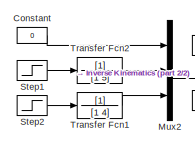
[diagram: root canvas - part 1/2, top left region]
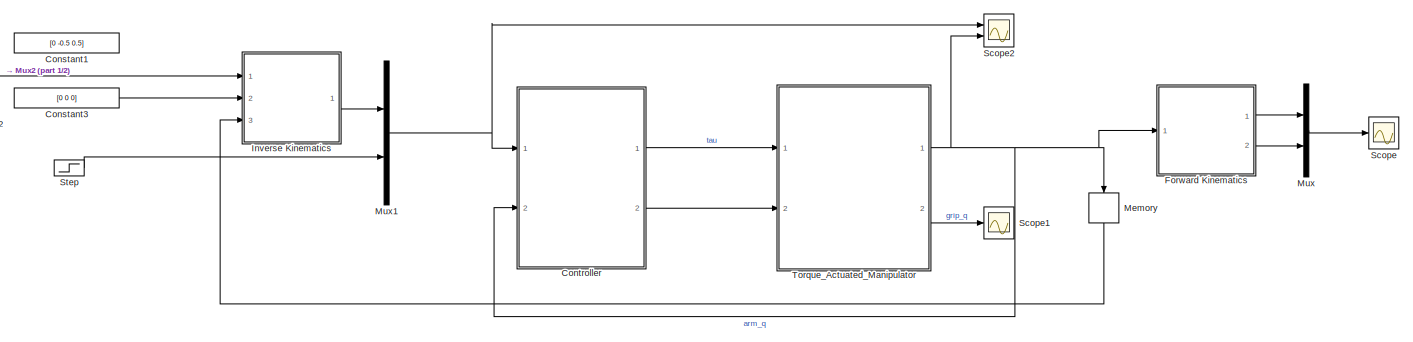
[diagram: root canvas - part 2/2, most of the canvas]
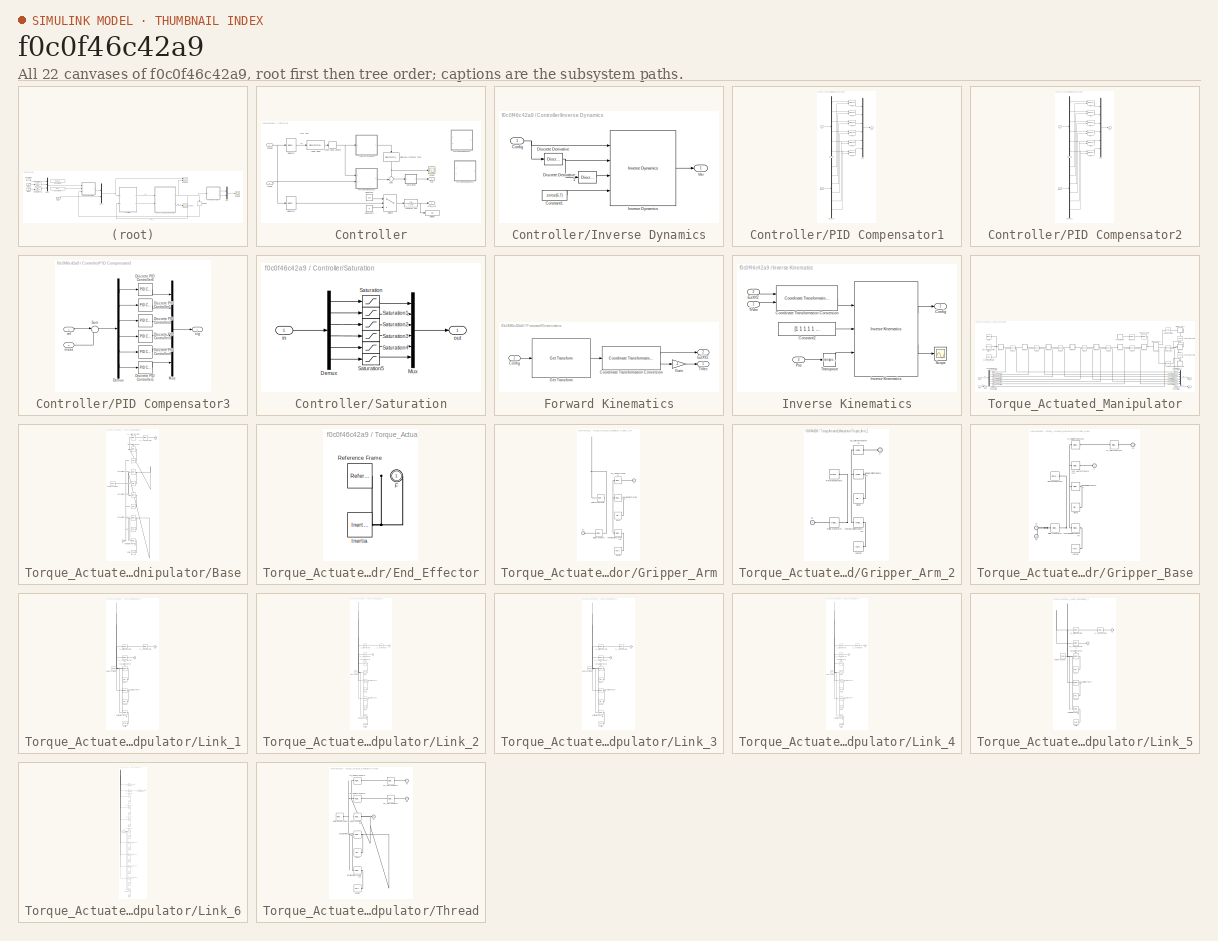
[diagram: thumbnail index - all 22 canvases of the model, root first then tree order]
MODEL slx_f0c0f46c42a9
KIND model
CONFIG AbsTol = auto
CONFIG EnableMultiTasking = off
CONFIG FixedStep = auto
CONFIG InitFcn = initializeParameters
CONFIG MaxStep = auto
CONFIG MinStep = auto
CONFIG PreLoadFcn = initializeParameters
CONFIG RelTol = 1e-3
CONFIG SampleTimeConstraint = Unconstrained
CONFIG Solver = VariableStepAuto
CONFIG SolverName = VariableStepAuto
CONFIG StartFcn = initializeParameters
CONFIG StartTime = 0.0
CONFIG StopTime = stopTime
BLOCK [Constant] Constant
  Value = 0
BLOCK [Constant] Constant1
  Value = [0 -0.5 0.5]
BLOCK [Constant] Constant3
  Value = [0 0 0]
BLOCK [SubSystem] Controller
  Ports = [2, 2]
BLOCK [Inport] Controller/Config
BLOCK [Constant] Controller/Constant
  Value = 150
BLOCK [Constant] Controller/Constant1
  Value = 0
BLOCK [DiscreteTransferFcn] Controller/Discrete Transfer Fcn1
  Denominator = [1 -0.9984]
  InputPortMap = u0
  Numerator = [0.00157]
  Ports = [1, 1]
  SampleTime = 0.05
BLOCK [Display] Controller/Display
  Decimation = 1
  Ports = [1]
BLOCK [Outport] Controller/Grip_Out
  Port = 2
BLOCK [DiscreteTransferFcn] Controller/Input Filter
  Commented = through
  Denominator = [1 -0.9753]
  InputPortMap = u0
  Numerator = 0.02469
  Ports = [1, 1]
BLOCK [RateLimiter] Controller/Input Rate Limiter
  Commented = through
  FallingSlewLimit = -2*pi
  RisingSlewLimit = 2*pi
  SampleTimeMode = inherited
BLOCK [SubSystem] Controller/Inverse Dynamics
  Ports = [1, 1]
BLOCK [Inport] Controller/Inverse Dynamics/Config
BLOCK [Constant] Controller/Inverse Dynamics/Constant1
  Value = zeros(6,7)
BLOCK [Reference] Controller/Inverse Dynamics/Discrete Derivative  REF=simulink/Discrete/Discrete Derivative
  Ports = [1, 1]
  SourceBlock = simulink/Discrete/Discrete Derivative
  SourceType = Discrete Derivative
BLOCK [Reference] Controller/Inverse Dynamics/Discrete Derivative1  REF=simulink/Discrete/Discrete Derivative
  Ports = [1, 1]
  SourceBlock = simulink/Discrete/Discrete Derivative
  SourceType = Discrete Derivative
BLOCK [Reference] Controller/Inverse Dynamics/Inverse Dynamics  REF=robotmaniplib/Inverse Dynamics
  Ports = [4, 1]
  SourceBlock = robotmaniplib/Inverse Dynamics
  SourceType = Inverse Dynamics
BLOCK [Outport] Controller/Inverse Dynamics/tau
BLOCK [Inport] Controller/Meas
  Port = 2
BLOCK [SubSystem] Controller/PID Compensator1
  Commented = on
  Ports = [2, 1]
BLOCK [Demux] Controller/PID Compensator1/Demux
  Outputs = 6
  Ports = [1, 6]
BLOCK [Demux] Controller/PID Compensator1/Demux1
  Outputs = 6
  Ports = [1, 6]
BLOCK [Mux] Controller/PID Compensator1/Mux
  DisplayOption = bar
  Inputs = 6
  Ports = [6, 1]
BLOCK [Reference] Controller/PID Compensator1/PID1  REF=simulink/Continuous/PID Controller (2DOF)
  Ports = [2, 1]
  SourceBlock = simulink/Continuous/PID Controller (2DOF)
  SourceType = PID 2dof
BLOCK [Reference] Controller/PID Compensator1/PID2  REF=simulink/Continuous/PID Controller (2DOF)
  Ports = [2, 1]
  SourceBlock = simulink/Continuous/PID Controller (2DOF)
  SourceType = PID 2dof
BLOCK [Reference] Controller/PID Compensator1/PID3  REF=simulink/Continuous/PID Controller (2DOF)
  Ports = [2, 1]
  SourceBlock = simulink/Continuous/PID Controller (2DOF)
  SourceType = PID 2dof
BLOCK [Reference] Controller/PID Compensator1/PID4  REF=simulink/Continuous/PID Controller (2DOF)
  Ports = [2, 1]
  SourceBlock = simulink/Continuous/PID Controller (2DOF)
  SourceType = PID 2dof
BLOCK [Reference] Controller/PID Compensator1/PID5  REF=simulink/Continuous/PID Controller (2DOF)
  Ports = [2, 1]
  SourceBlock = simulink/Continuous/PID Controller (2DOF)
  SourceType = PID 2dof
BLOCK [Reference] Controller/PID Compensator1/PID6  REF=simulink/Continuous/PID Controller (2DOF)
  Ports = [2, 1]
  SourceBlock = simulink/Continuous/PID Controller (2DOF)
  SourceType = PID 2dof
BLOCK [Inport] Controller/PID Compensator1/meas
  Port = 2
BLOCK [Inport] Controller/PID Compensator1/ref
BLOCK [Outport] Controller/PID Compensator1/sig
BLOCK [SubSystem] Controller/PID Compensator2
  Ports = [2, 1]
BLOCK [Demux] Controller/PID Compensator2/Demux
  Outputs = 6
  Ports = [1, 6]
BLOCK [Demux] Controller/PID Compensator2/Demux1
  Outputs = 6
  Ports = [1, 6]
BLOCK [Mux] Controller/PID Compensator2/Mux
  DisplayOption = bar
  Inputs = 6
  Ports = [6, 1]
BLOCK [Reference] Controller/PID Compensator2/PID1  REF=simulink/Continuous/PID Controller (2DOF)
  Ports = [2, 1]
  SourceBlock = simulink/Continuous/PID Controller (2DOF)
  SourceType = PID 2dof
BLOCK [Reference] Controller/PID Compensator2/PID2  REF=simulink/Continuous/PID Controller (2DOF)
  Ports = [2, 1]
  SourceBlock = simulink/Continuous/PID Controller (2DOF)
  SourceType = PID 2dof
BLOCK [Reference] Controller/PID Compensator2/PID3  REF=simulink/Continuous/PID Controller (2DOF)
  Ports = [2, 1]
  SourceBlock = simulink/Continuous/PID Controller (2DOF)
  SourceType = PID 2dof
BLOCK [Reference] Controller/PID Compensator2/PID4  REF=simulink/Continuous/PID Controller (2DOF)
  Ports = [2, 1]
  SourceBlock = simulink/Continuous/PID Controller (2DOF)
  SourceType = PID 2dof
BLOCK [Reference] Controller/PID Compensator2/PID5  REF=simulink/Continuous/PID Controller (2DOF)
  Ports = [2, 1]
  SourceBlock = simulink/Continuous/PID Controller (2DOF)
  SourceType = PID 2dof
BLOCK [Reference] Controller/PID Compensator2/PID6  REF=simulink/Continuous/PID Controller (2DOF)
  Ports = [2, 1]
  SourceBlock = simulink/Continuous/PID Controller (2DOF)
  SourceType = PID 2dof
BLOCK [Inport] Controller/PID Compensator2/meas
  Port = 2
BLOCK [Inport] Controller/PID Compensator2/ref
BLOCK [Outport] Controller/PID Compensator2/sig
BLOCK [SubSystem] Controller/PID Compensator3
  Commented = on
  Ports = [2, 1]
BLOCK [Demux] Controller/PID Compensator3/Demux
  Outputs = 6
  Ports = [1, 6]
BLOCK [Reference] Controller/PID Compensator3/Discrete PID Controller1  REF=simulink/Continuous/PID Controller
  Ports = [1, 1]
  SourceBlock = simulink/Continuous/PID Controller
  SourceType = PID 1dof
BLOCK [Reference] Controller/PID Compensator3/Discrete PID Controller2  REF=simulink/Continuous/PID Controller
  Ports = [1, 1]
  SourceBlock = simulink/Continuous/PID Controller
  SourceType = PID 1dof
BLOCK [Reference] Controller/PID Compensator3/Discrete PID Controller3  REF=simulink/Continuous/PID Controller
  Ports = [1, 1]
  SourceBlock = simulink/Continuous/PID Controller
  SourceType = PID 1dof
BLOCK [Reference] Controller/PID Compensator3/Discrete PID Controller4  REF=simulink/Continuous/PID Controller
  Ports = [1, 1]
  SourceBlock = simulink/Continuous/PID Controller
  SourceType = PID 1dof
BLOCK [Reference] Controller/PID Compensator3/Discrete PID Controller5  REF=simulink/Continuous/PID Controller
  Ports = [1, 1]
  SourceBlock = simulink/Continuous/PID Controller
  SourceType = PID 1dof
BLOCK [Reference] Controller/PID Compensator3/Discrete PID Controller6  REF=simulink/Continuous/PID Controller
  Ports = [1, 1]
  SourceBlock = simulink/Continuous/PID Controller
  SourceType = PID 1dof
BLOCK [Mux] Controller/PID Compensator3/Mux
  DisplayOption = bar
  Inputs = 6
  Ports = [6, 1]
BLOCK [Sum] Controller/PID Compensator3/Sum
  Inputs = |+-
  Ports = [2, 1]
BLOCK [Inport] Controller/PID Compensator3/meas
  Port = 2
BLOCK [Inport] Controller/PID Compensator3/ref
BLOCK [Outport] Controller/PID Compensator3/sig
BLOCK [SubSystem] Controller/Saturation
  Commented = through
  Ports = [1, 1]
BLOCK [Demux] Controller/Saturation/Demux
  Outputs = 6
  Ports = [1, 6]
BLOCK [Mux] Controller/Saturation/Mux
  DisplayOption = bar
  Inputs = 6
  Ports = [6, 1]
BLOCK [Saturate] Controller/Saturation/Saturation
  LowerLimit = tau_1_L
  UpperLimit = tau_1_U
BLOCK [Saturate] Controller/Saturation/Saturation1
  LowerLimit = tau_2_L
  UpperLimit = tau_2_U
BLOCK [Saturate] Controller/Saturation/Saturation2
  LowerLimit = tau_3_L
  UpperLimit = tau_3_U
BLOCK [Saturate] Controller/Saturation/Saturation3
  LowerLimit = tau_4_L
  UpperLimit = tau_4_U
BLOCK [Saturate] Controller/Saturation/Saturation4
  LowerLimit = tau_5_L
  UpperLimit = tau_5_U
BLOCK [Saturate] Controller/Saturation/Saturation5
  LowerLimit = tau_6_L
  UpperLimit = tau_6_U
BLOCK [Inport] Controller/Saturation/in
BLOCK [Outport] Controller/Saturation/out
BLOCK [Scope] Controller/Scope
  Floating = off
  NumInputPorts = 1
  Ports = [1]
  ScopeSpecificationString = Simulink.scopes.TimeScopeBlockCfg('CurrentConfiguration', extmgr.ConfigurationSet(extmgr.Configuration('Core','General UI',true),extmgr.Configuration('Core','Source UI',true),extmgr.Configuration('Sources','WiredSimulink',true),extmgr.Configuration('Visuals','Time Domain',true,'SerializedDisplays',{struct('MinYLimReal','-3026.57296','MaxYLimReal','1267.02491','YLabelReal','','MinYLimMag','  0.0000...<+1466ch>
BLOCK [Selector] Controller/Selector
  IndexOptions = Index vector (dialog)
  Indices = [1:6]
  InputPortWidth = 7
  OutputSizes = 1
  Ports = [1, 1]
BLOCK [Selector] Controller/Selector1
  IndexOptions = Index vector (dialog)
  Indices = [7]
  InputPortWidth = 7
  OutputSizes = 1
  Ports = [1, 1]
BLOCK [Sum] Controller/Sum
  Inputs = ++|
  Ports = [2, 1]
BLOCK [Switch] Controller/Switch
  Criteria = u2 > Threshold
  InputSameDT = off
  SaturateOnIntegerOverflow = off
BLOCK [TransferFcn] Controller/Transfer Fcn
  Denominator = [1 6]
BLOCK [Outport] Controller/tau
BLOCK [SubSystem] Forward Kinematics
  Commented = on
  Ports = [1, 2]
BLOCK [Inport] Forward Kinematics/Config
BLOCK [Reference] Forward Kinematics/Coordinate Transformation Conversion  REF=robotcorelib/Coordinate Transformation Conversion
  Ports = [1, 2]
  SourceBlock = robotcorelib/Coordinate Transformation Conversion
  SourceType = robotics.slcore.internal.block.CoordinateTransformationConversion
BLOCK [Outport] Forward Kinematics/EulXYZ
  Port = 2
BLOCK [Gain] Forward Kinematics/Gain
  Gain = -1
BLOCK [Reference] Forward Kinematics/Get Transform  REF=robotmaniplib/Get Transform
  Ports = [1, 1]
  SourceBlock = robotmaniplib/Get Transform
  SourceType = Get Transform
BLOCK [Outport] Forward Kinematics/TrVec
BLOCK [SubSystem] Inverse Kinematics
  Ports = [3, 1]
BLOCK [Outport] Inverse Kinematics/Config
BLOCK [Constant] Inverse Kinematics/Constant2
  Value = [1 1 1 1 1 1]
BLOCK [Reference] Inverse Kinematics/Coordinate Transformation Conversion  REF=robotcorelib/Coordinate Transformation Conversion
  Ports = [2, 1]
  SourceBlock = robotcorelib/Coordinate Transformation Conversion
  SourceType = robotics.slcore.internal.block.CoordinateTransformationConversion
BLOCK [Inport] Inverse Kinematics/EulXYZ
  Port = 2
BLOCK [Reference] Inverse Kinematics/Inverse Kinematics  REF=robotmaniplib/Inverse Kinematics
  Ports = [3, 2]
  SourceBlock = robotmaniplib/Inverse Kinematics
  SourceType = Inverse Kinematics
BLOCK [Inport] Inverse Kinematics/Pos
  Port = 3
BLOCK [Scope] Inverse Kinematics/Scope
  Floating = off
  NumInputPorts = 1
  Ports = [1]
  ScopeSpecificationString = Simulink.scopes.TimeScopeBlockCfg('CurrentConfiguration', extmgr.ConfigurationSet(extmgr.Configuration('Core','General UI',true),extmgr.Configuration('Core','Source UI',true),extmgr.Configuration('Sources','WiredSimulink',true),extmgr.Configuration('Visuals','Time Domain',true),extmgr.Configuration('Tools','Plot Navigation',true),extmgr.Configuration('Tools','Measurements',true)),'Version','2023a'...<+1ch>
BLOCK [Inport] Inverse Kinematics/TrVec
BLOCK [Math] Inverse Kinematics/Transpose
  Operator = transpose
  Ports = [1, 1]
BLOCK [Memory] Memory
  InheritSampleTime = on
  LinearizeAsDelay = on
BLOCK [Mux] Mux
  Commented = on
  DisplayOption = bar
  Inputs = 2
  Ports = [2, 1]
BLOCK [Mux] Mux1
  DisplayOption = bar
  Inputs = 2
  Ports = [2, 1]
BLOCK [Mux] Mux2
  DisplayOption = bar
  Inputs = 3
  Ports = [3, 1]
BLOCK [Scope] Scope
  Commented = on
  Floating = off
  NumInputPorts = 1
  Ports = [1]
  ScopeSpecificationString = Simulink.scopes.TimeScopeBlockCfg('CurrentConfiguration', extmgr.ConfigurationSet(extmgr.Configuration('Core','General UI',true),extmgr.Configuration('Core','Source UI',true),extmgr.Configuration('Sources','WiredSimulink',true),extmgr.Configuration('Visuals','Time Domain',true,'SerializedDisplays',{struct('MinYLimReal','-0.93758','MaxYLimReal','0.50205','YLabelReal','','MinYLimMag','0.00000','MaxY...<+1745ch>
BLOCK [Scope] Scope1
  Floating = off
  NumInputPorts = 1
  Ports = [1]
  ScopeSpecificationString = Simulink.scopes.TimeScopeBlockCfg('CurrentConfiguration', extmgr.ConfigurationSet(extmgr.Configuration('Core','General UI',true),extmgr.Configuration('Core','Source UI',true),extmgr.Configuration('Sources','WiredSimulink',true,'DataLoggingVariableName','ScopeData1'),extmgr.Configuration('Visuals','Time Domain',true),extmgr.Configuration('Tools','Plot Navigation',true),extmgr.Configuration('Tools',...<+40ch>
BLOCK [Scope] Scope2
  Floating = off
  NumInputPorts = 2
  Ports = [2]
  ScopeSpecificationString = Simulink.scopes.TimeScopeBlockCfg('CurrentConfiguration', extmgr.ConfigurationSet(extmgr.Configuration('Core','General UI',true),extmgr.Configuration('Core','Source UI',true),extmgr.Configuration('Sources','WiredSimulink',true,'DataLoggingVariableName','ScopeData1'),extmgr.Configuration('Visuals','Time Domain',true,'SerializedDisplays',{struct('MinYLimReal','-2.83034','MaxYLimReal','0.31448','YLab...<+2250ch>
BLOCK [Step] Step
  SampleTime = 0
BLOCK [Step] Step1
  After = 0.5
  SampleTime = 0
BLOCK [Step] Step2
  After = 0.5
  SampleTime = 0
  Time = 1.7
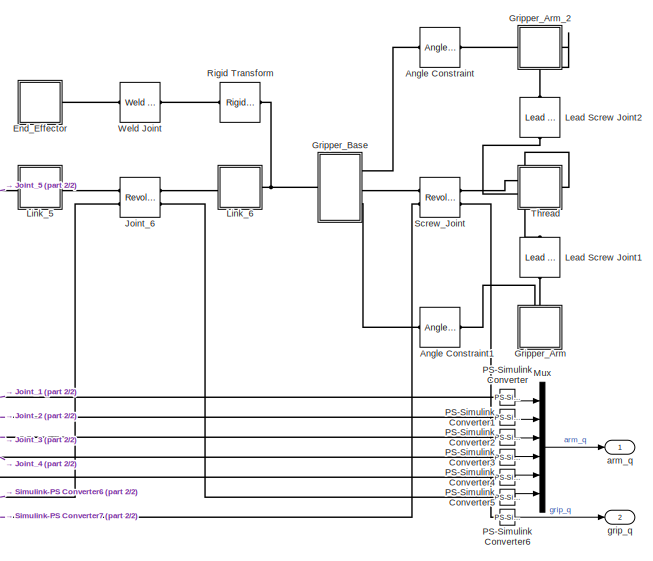
[diagram: Torque_Actuated_Manipulator - part 1/2, right side, full height]
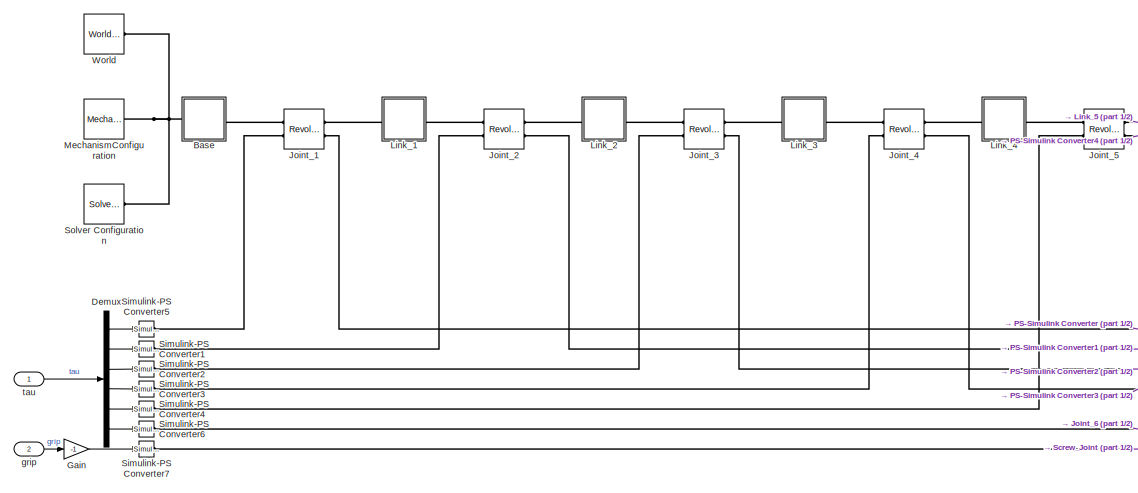
[diagram: Torque_Actuated_Manipulator - part 2/2, left side, full height]
BLOCK [SubSystem] Torque_Actuated_Manipulator
  Ports = [2, 2]
BLOCK [Reference] Torque_Actuated_Manipulator/Angle Constraint  REF=sm_lib/Constraints/Angle
Constraint
  Ports = [0, 0, 0, 0, 0, 1, 1]
  SourceBlock = sm_lib/Constraints/Angle\nConstraint
  SourceType = Angle\nConstraint
BLOCK [Reference] Torque_Actuated_Manipulator/Angle Constraint1  REF=sm_lib/Constraints/Angle
Constraint
  Ports = [0, 0, 0, 0, 0, 1, 1]
  SourceBlock = sm_lib/Constraints/Angle\nConstraint
  SourceType = Angle\nConstraint
BLOCK [SubSystem] Torque_Actuated_Manipulator/Base
  Ports = [0, 0, 0, 0, 0, 1, 1]
BLOCK [PMIOPort] Torque_Actuated_Manipulator/Base/F
  Side = Left
BLOCK [PMIOPort] Torque_Actuated_Manipulator/Base/F1
  Port = 2
  Side = Right
BLOCK [Reference] Torque_Actuated_Manipulator/Base/Inertia  REF=sm_lib/Body Elements/Inertia
  Ports = [0, 0, 0, 0, 0, 0, 1]
  SourceBlock = sm_lib/Body Elements/Inertia
  SourceType = Inertia
BLOCK [Reference] Torque_Actuated_Manipulator/Base/InertiaOriginTransform  REF=sm_lib/Frames and
Transforms/Rigid
Transform
  Ports = [0, 0, 0, 0, 0, 1, 1]
  SourceBlock = sm_lib/Frames and\nTransforms/Rigid\nTransform
  SourceType = Rigid\nTransform
BLOCK [Reference] Torque_Actuated_Manipulator/Base/ReferenceFrame  REF=sm_lib/Frames and
Transforms/Reference
Frame
  Ports = [0, 0, 0, 0, 0, 0, 1]
  SourceBlock = sm_lib/Frames and\nTransforms/Reference\nFrame
  SourceType = Reference\nFrame
BLOCK [Reference] Torque_Actuated_Manipulator/Base/Visual  REF=sm_lib/Body Elements/File Solid
  Ports = [0, 0, 0, 0, 0, 0, 1]
  SourceBlock = sm_lib/Body Elements/File Solid
  SourceType = File Solid
BLOCK [Reference] Torque_Actuated_Manipulator/Base/Visual1  REF=sm_lib/Body Elements/File Solid
  Ports = [0, 0, 0, 0, 0, 0, 1]
  SourceBlock = sm_lib/Body Elements/File Solid
  SourceType = File Solid
BLOCK [Reference] Torque_Actuated_Manipulator/Base/Visual2  REF=sm_lib/Body Elements/File Solid
  Ports = [0, 0, 0, 0, 0, 0, 1]
  SourceBlock = sm_lib/Body Elements/File Solid
  SourceType = File Solid
BLOCK [Reference] Torque_Actuated_Manipulator/Base/Visual3  REF=sm_lib/Body Elements/File Solid
  Ports = [0, 0, 0, 0, 0, 0, 1]
  SourceBlock = sm_lib/Body Elements/File Solid
  SourceType = File Solid
BLOCK [Reference] Torque_Actuated_Manipulator/Base/VisualOrigin1Transform  REF=sm_lib/Frames and
Transforms/Rigid
Transform
  Ports = [0, 0, 0, 0, 0, 1, 1]
  SourceBlock = sm_lib/Frames and\nTransforms/Rigid\nTransform
  SourceType = Rigid\nTransform
BLOCK [Reference] Torque_Actuated_Manipulator/Base/VisualOrigin2Transform  REF=sm_lib/Frames and
Transforms/Rigid
Transform
  Ports = [0, 0, 0, 0, 0, 1, 1]
  SourceBlock = sm_lib/Frames and\nTransforms/Rigid\nTransform
  SourceType = Rigid\nTransform
BLOCK [Reference] Torque_Actuated_Manipulator/Base/VisualOrigin3Transform  REF=sm_lib/Frames and
Transforms/Rigid
Transform
  Ports = [0, 0, 0, 0, 0, 1, 1]
  SourceBlock = sm_lib/Frames and\nTransforms/Rigid\nTransform
  SourceType = Rigid\nTransform
BLOCK [Reference] Torque_Actuated_Manipulator/Base/VisualOriginTransform  REF=sm_lib/Frames and
Transforms/Rigid
Transform
  Ports = [0, 0, 0, 0, 0, 1, 1]
  SourceBlock = sm_lib/Frames and\nTransforms/Rigid\nTransform
  SourceType = Rigid\nTransform
BLOCK [Reference] Torque_Actuated_Manipulator/Base/x1_AxisTransform  REF=sm_lib/Frames and
Transforms/Rigid
Transform
  Ports = [0, 0, 0, 0, 0, 1, 1]
  SourceBlock = sm_lib/Frames and\nTransforms/Rigid\nTransform
  SourceType = Rigid\nTransform
BLOCK [Reference] Torque_Actuated_Manipulator/Base/x1_OriginTransform  REF=sm_lib/Frames and
Transforms/Rigid
Transform
  Ports = [0, 0, 0, 0, 0, 1, 1]
  SourceBlock = sm_lib/Frames and\nTransforms/Rigid\nTransform
  SourceType = Rigid\nTransform
BLOCK [Demux] Torque_Actuated_Manipulator/Demux
  Outputs = 6
  Ports = [1, 6]
BLOCK [SubSystem] Torque_Actuated_Manipulator/End_Effector
  Ports = [0, 0, 0, 0, 0, 0, 1]
BLOCK [PMIOPort] Torque_Actuated_Manipulator/End_Effector/F
  Side = Right
BLOCK [Reference] Torque_Actuated_Manipulator/End_Effector/Inertia  REF=sm_lib/Body Elements/Inertia
  Ports = [0, 0, 0, 0, 0, 0, 1]
  SourceBlock = sm_lib/Body Elements/Inertia
  SourceType = Inertia
BLOCK [Reference] Torque_Actuated_Manipulator/End_Effector/Reference Frame  REF=sm_lib/Frames and
Transforms/Reference
Frame
  Ports = [0, 0, 0, 0, 0, 0, 1]
  SourceBlock = sm_lib/Frames and\nTransforms/Reference\nFrame
  SourceType = Reference\nFrame
BLOCK [Gain] Torque_Actuated_Manipulator/Gain
  Gain = -1
BLOCK [SubSystem] Torque_Actuated_Manipulator/Gripper_Arm
  Ports = [0, 0, 0, 0, 0, 2]
BLOCK [PMIOPort] Torque_Actuated_Manipulator/Gripper_Arm/F
  Side = Left
BLOCK [PMIOPort] Torque_Actuated_Manipulator/Gripper_Arm/F1
  Port = 2
  Side = Left
BLOCK [Reference] Torque_Actuated_Manipulator/Gripper_Arm/Inertia  REF=sm_lib/Body Elements/Inertia
  Ports = [0, 0, 0, 0, 0, 0, 1]
  SourceBlock = sm_lib/Body Elements/Inertia
  SourceType = Inertia
BLOCK [Reference] Torque_Actuated_Manipulator/Gripper_Arm/InertiaOriginTransform  REF=sm_lib/Frames and
Transforms/Rigid
Transform
  Ports = [0, 0, 0, 0, 0, 1, 1]
  SourceBlock = sm_lib/Frames and\nTransforms/Rigid\nTransform
  SourceType = Rigid\nTransform
BLOCK [Reference] Torque_Actuated_Manipulator/Gripper_Arm/ReferenceFrame  REF=sm_lib/Frames and
Transforms/Reference
Frame
  Ports = [0, 0, 0, 0, 0, 0, 1]
  SourceBlock = sm_lib/Frames and\nTransforms/Reference\nFrame
  SourceType = Reference\nFrame
BLOCK [Reference] Torque_Actuated_Manipulator/Gripper_Arm/Rigid Transform  REF=sm_lib/Frames and
Transforms/Rigid
Transform
  Ports = [0, 0, 0, 0, 0, 1, 1]
  SourceBlock = sm_lib/Frames and\nTransforms/Rigid\nTransform
  SourceType = Rigid\nTransform
BLOCK [Reference] Torque_Actuated_Manipulator/Gripper_Arm/Visual  REF=sm_lib/Body Elements/File Solid
  Ports = [0, 0, 0, 0, 0, 0, 1]
  SourceBlock = sm_lib/Body Elements/File Solid
  SourceType = File Solid
BLOCK [Reference] Torque_Actuated_Manipulator/Gripper_Arm/VisualOriginTransform  REF=sm_lib/Frames and
Transforms/Rigid
Transform
  Ports = [0, 0, 0, 0, 0, 1, 1]
  SourceBlock = sm_lib/Frames and\nTransforms/Rigid\nTransform
  SourceType = Rigid\nTransform
BLOCK [Reference] Torque_Actuated_Manipulator/Gripper_Arm/x8_AxisInvTransform  REF=sm_lib/Frames and
Transforms/Rigid
Transform
  Ports = [0, 0, 0, 0, 0, 1, 1]
  SourceBlock = sm_lib/Frames and\nTransforms/Rigid\nTransform
  SourceType = Rigid\nTransform
BLOCK [SubSystem] Torque_Actuated_Manipulator/Gripper_Arm_2
  Ports = [0, 0, 0, 0, 0, 2]
BLOCK [PMIOPort] Torque_Actuated_Manipulator/Gripper_Arm_2/F
  Side = Left
BLOCK [PMIOPort] Torque_Actuated_Manipulator/Gripper_Arm_2/F1
  Port = 2
  Side = Left
BLOCK [Reference] Torque_Actuated_Manipulator/Gripper_Arm_2/Inertia  REF=sm_lib/Body Elements/Inertia
  Ports = [0, 0, 0, 0, 0, 0, 1]
  SourceBlock = sm_lib/Body Elements/Inertia
  SourceType = Inertia
BLOCK [Reference] Torque_Actuated_Manipulator/Gripper_Arm_2/InertiaOriginTransform  REF=sm_lib/Frames and
Transforms/Rigid
Transform
  Ports = [0, 0, 0, 0, 0, 1, 1]
  SourceBlock = sm_lib/Frames and\nTransforms/Rigid\nTransform
  SourceType = Rigid\nTransform
BLOCK [Reference] Torque_Actuated_Manipulator/Gripper_Arm_2/ReferenceFrame  REF=sm_lib/Frames and
Transforms/Reference
Frame
  Ports = [0, 0, 0, 0, 0, 0, 1]
  SourceBlock = sm_lib/Frames and\nTransforms/Reference\nFrame
  SourceType = Reference\nFrame
BLOCK [Reference] Torque_Actuated_Manipulator/Gripper_Arm_2/Rigid Transform  REF=sm_lib/Frames and
Transforms/Rigid
Transform
  Ports = [0, 0, 0, 0, 0, 1, 1]
  SourceBlock = sm_lib/Frames and\nTransforms/Rigid\nTransform
  SourceType = Rigid\nTransform
BLOCK [Reference] Torque_Actuated_Manipulator/Gripper_Arm_2/Visual  REF=sm_lib/Body Elements/File Solid
  Ports = [0, 0, 0, 0, 0, 0, 1]
  SourceBlock = sm_lib/Body Elements/File Solid
  SourceType = File Solid
BLOCK [Reference] Torque_Actuated_Manipulator/Gripper_Arm_2/VisualOriginTransform  REF=sm_lib/Frames and
Transforms/Rigid
Transform
  Ports = [0, 0, 0, 0, 0, 1, 1]
  SourceBlock = sm_lib/Frames and\nTransforms/Rigid\nTransform
  SourceType = Rigid\nTransform
BLOCK [Reference] Torque_Actuated_Manipulator/Gripper_Arm_2/x9_AxisInvTransform  REF=sm_lib/Frames and
Transforms/Rigid
Transform
  Ports = [0, 0, 0, 0, 0, 1, 1]
  SourceBlock = sm_lib/Frames and\nTransforms/Rigid\nTransform
  SourceType = Rigid\nTransform
BLOCK [SubSystem] Torque_Actuated_Manipulator/Gripper_Base
  Ports = [0, 0, 0, 0, 0, 1, 3]
BLOCK [PMIOPort] Torque_Actuated_Manipulator/Gripper_Base/F
  Side = Left
BLOCK [PMIOPort] Torque_Actuated_Manipulator/Gripper_Base/F1
  Port = 3
  Side = Right
BLOCK [PMIOPort] Torque_Actuated_Manipulator/Gripper_Base/F2
  Port = 2
  Side = Right
BLOCK [PMIOPort] Torque_Actuated_Manipulator/Gripper_Base/F3
  Port = 4
  Side = Right
BLOCK [Reference] Torque_Actuated_Manipulator/Gripper_Base/Inertia  REF=sm_lib/Body Elements/Inertia
  Ports = [0, 0, 0, 0, 0, 0, 1]
  SourceBlock = sm_lib/Body Elements/Inertia
  SourceType = Inertia
BLOCK [Reference] Torque_Actuated_Manipulator/Gripper_Base/InertiaOriginTransform  REF=sm_lib/Frames and
Transforms/Rigid
Transform
  Ports = [0, 0, 0, 0, 0, 1, 1]
  SourceBlock = sm_lib/Frames and\nTransforms/Rigid\nTransform
  SourceType = Rigid\nTransform
BLOCK [Reference] Torque_Actuated_Manipulator/Gripper_Base/ReferenceFrame  REF=sm_lib/Frames and
Transforms/Reference
Frame
  Ports = [0, 0, 0, 0, 0, 0, 1]
  SourceBlock = sm_lib/Frames and\nTransforms/Reference\nFrame
  SourceType = Reference\nFrame
BLOCK [Reference] Torque_Actuated_Manipulator/Gripper_Base/Rigid Transform  REF=sm_lib/Frames and
Transforms/Rigid
Transform
  Ports = [0, 0, 0, 0, 0, 1, 1]
  SourceBlock = sm_lib/Frames and\nTransforms/Rigid\nTransform
  SourceType = Rigid\nTransform
BLOCK [Reference] Torque_Actuated_Manipulator/Gripper_Base/Visual  REF=sm_lib/Body Elements/File Solid
  Ports = [0, 0, 0, 0, 0, 0, 1]
  SourceBlock = sm_lib/Body Elements/File Solid
  SourceType = File Solid
BLOCK [Reference] Torque_Actuated_Manipulator/Gripper_Base/VisualOriginTransform  REF=sm_lib/Frames and
Transforms/Rigid
Transform
  Ports = [0, 0, 0, 0, 0, 1, 1]
  SourceBlock = sm_lib/Frames and\nTransforms/Rigid\nTransform
  SourceType = Rigid\nTransform
BLOCK [Reference] Torque_Actuated_Manipulator/Gripper_Base/x12_AxisInvTransform  REF=sm_lib/Frames and
Transforms/Rigid
Transform
  Ports = [0, 0, 0, 0, 0, 1, 1]
  SourceBlock = sm_lib/Frames and\nTransforms/Rigid\nTransform
  SourceType = Rigid\nTransform
BLOCK [Reference] Torque_Actuated_Manipulator/Gripper_Base/x7_AxisTransform  REF=sm_lib/Frames and
Transforms/Rigid
Transform
  Ports = [0, 0, 0, 0, 0, 1, 1]
  SourceBlock = sm_lib/Frames and\nTransforms/Rigid\nTransform
  SourceType = Rigid\nTransform
BLOCK [Reference] Torque_Actuated_Manipulator/Gripper_Base/x7_OriginTransform  REF=sm_lib/Frames and
Transforms/Rigid
Transform
  Ports = [0, 0, 0, 0, 0, 1, 1]
  SourceBlock = sm_lib/Frames and\nTransforms/Rigid\nTransform
  SourceType = Rigid\nTransform
BLOCK [Reference] Torque_Actuated_Manipulator/Joint_1  REF=sm_lib/Joints/Revolute Joint
  Ports = [0, 0, 0, 0, 0, 2, 2]
  SourceBlock = sm_lib/Joints/Revolute Joint
  SourceType = Revolute Joint
BLOCK [Reference] Torque_Actuated_Manipulator/Joint_2  REF=sm_lib/Joints/Revolute Joint
  Ports = [0, 0, 0, 0, 0, 2, 2]
  SourceBlock = sm_lib/Joints/Revolute Joint
  SourceType = Revolute Joint
BLOCK [Reference] Torque_Actuated_Manipulator/Joint_3  REF=sm_lib/Joints/Revolute Joint
  Ports = [0, 0, 0, 0, 0, 2, 2]
  SourceBlock = sm_lib/Joints/Revolute Joint
  SourceType = Revolute Joint
BLOCK [Reference] Torque_Actuated_Manipulator/Joint_4  REF=sm_lib/Joints/Revolute Joint
  Ports = [0, 0, 0, 0, 0, 2, 2]
  SourceBlock = sm_lib/Joints/Revolute Joint
  SourceType = Revolute Joint
BLOCK [Reference] Torque_Actuated_Manipulator/Joint_5  REF=sm_lib/Joints/Revolute Joint
  Ports = [0, 0, 0, 0, 0, 2, 2]
  SourceBlock = sm_lib/Joints/Revolute Joint
  SourceType = Revolute Joint
BLOCK [Reference] Torque_Actuated_Manipulator/Joint_6  REF=sm_lib/Joints/Revolute Joint
  Ports = [0, 0, 0, 0, 0, 2, 2]
  SourceBlock = sm_lib/Joints/Revolute Joint
  SourceType = Revolute Joint
BLOCK [Reference] Torque_Actuated_Manipulator/Lead Screw Joint1  REF=sm_lib/Joints/Lead Screw
Joint
  Ports = [0, 0, 0, 0, 0, 1, 1]
  SourceBlock = sm_lib/Joints/Lead Screw\nJoint
  SourceType = Lead Screw\nJoint
BLOCK [Reference] Torque_Actuated_Manipulator/Lead Screw Joint2  REF=sm_lib/Joints/Lead Screw
Joint
  Ports = [0, 0, 0, 0, 0, 1, 1]
  SourceBlock = sm_lib/Joints/Lead Screw\nJoint
  SourceType = Lead Screw\nJoint
BLOCK [SubSystem] Torque_Actuated_Manipulator/Link_1
  Ports = [0, 0, 0, 0, 0, 1, 1]
BLOCK [PMIOPort] Torque_Actuated_Manipulator/Link_1/F
  Side = Left
BLOCK [PMIOPort] Torque_Actuated_Manipulator/Link_1/F1
  Port = 2
  Side = Right
BLOCK [Reference] Torque_Actuated_Manipulator/Link_1/Inertia  REF=sm_lib/Body Elements/Inertia
  Ports = [0, 0, 0, 0, 0, 0, 1]
  SourceBlock = sm_lib/Body Elements/Inertia
  SourceType = Inertia
BLOCK [Reference] Torque_Actuated_Manipulator/Link_1/InertiaOriginTransform  REF=sm_lib/Frames and
Transforms/Rigid
Transform
  Ports = [0, 0, 0, 0, 0, 1, 1]
  SourceBlock = sm_lib/Frames and\nTransforms/Rigid\nTransform
  SourceType = Rigid\nTransform
BLOCK [Reference] Torque_Actuated_Manipulator/Link_1/ReferenceFrame  REF=sm_lib/Frames and
Transforms/Reference
Frame
  Ports = [0, 0, 0, 0, 0, 0, 1]
  SourceBlock = sm_lib/Frames and\nTransforms/Reference\nFrame
  SourceType = Reference\nFrame
BLOCK [Reference] Torque_Actuated_Manipulator/Link_1/Visual  REF=sm_lib/Body Elements/File Solid
  Ports = [0, 0, 0, 0, 0, 0, 1]
  SourceBlock = sm_lib/Body Elements/File Solid
  SourceType = File Solid
BLOCK [Reference] Torque_Actuated_Manipulator/Link_1/Visual1  REF=sm_lib/Body Elements/File Solid
  Ports = [0, 0, 0, 0, 0, 0, 1]
  SourceBlock = sm_lib/Body Elements/File Solid
  SourceType = File Solid
BLOCK [Reference] Torque_Actuated_Manipulator/Link_1/VisualOrigin1Transform  REF=sm_lib/Frames and
Transforms/Rigid
Transform
  Ports = [0, 0, 0, 0, 0, 1, 1]
  SourceBlock = sm_lib/Frames and\nTransforms/Rigid\nTransform
  SourceType = Rigid\nTransform
BLOCK [Reference] Torque_Actuated_Manipulator/Link_1/VisualOriginTransform  REF=sm_lib/Frames and
Transforms/Rigid
Transform
  Ports = [0, 0, 0, 0, 0, 1, 1]
  SourceBlock = sm_lib/Frames and\nTransforms/Rigid\nTransform
  SourceType = Rigid\nTransform
BLOCK [Reference] Torque_Actuated_Manipulator/Link_1/x1_AxisInvTransform  REF=sm_lib/Frames and
Transforms/Rigid
Transform
  Ports = [0, 0, 0, 0, 0, 1, 1]
  SourceBlock = sm_lib/Frames and\nTransforms/Rigid\nTransform
  SourceType = Rigid\nTransform
BLOCK [Reference] Torque_Actuated_Manipulator/Link_1/x2_AxisTransform  REF=sm_lib/Frames and
Transforms/Rigid
Transform
  Ports = [0, 0, 0, 0, 0, 1, 1]
  SourceBlock = sm_lib/Frames and\nTransforms/Rigid\nTransform
  SourceType = Rigid\nTransform
BLOCK [Reference] Torque_Actuated_Manipulator/Link_1/x2_OriginTransform  REF=sm_lib/Frames and
Transforms/Rigid
Transform
  Ports = [0, 0, 0, 0, 0, 1, 1]
  SourceBlock = sm_lib/Frames and\nTransforms/Rigid\nTransform
  SourceType = Rigid\nTransform
BLOCK [SubSystem] Torque_Actuated_Manipulator/Link_2
  Ports = [0, 0, 0, 0, 0, 1, 1]
BLOCK [PMIOPort] Torque_Actuated_Manipulator/Link_2/F
  Side = Left
BLOCK [PMIOPort] Torque_Actuated_Manipulator/Link_2/F1
  Port = 2
  Side = Right
BLOCK [Reference] Torque_Actuated_Manipulator/Link_2/Inertia  REF=sm_lib/Body Elements/Inertia
  Ports = [0, 0, 0, 0, 0, 0, 1]
  SourceBlock = sm_lib/Body Elements/Inertia
  SourceType = Inertia
BLOCK [Reference] Torque_Actuated_Manipulator/Link_2/InertiaOriginTransform  REF=sm_lib/Frames and
Transforms/Rigid
Transform
  Ports = [0, 0, 0, 0, 0, 1, 1]
  SourceBlock = sm_lib/Frames and\nTransforms/Rigid\nTransform
  SourceType = Rigid\nTransform
BLOCK [Reference] Torque_Actuated_Manipulator/Link_2/ReferenceFrame  REF=sm_lib/Frames and
Transforms/Reference
Frame
  Ports = [0, 0, 0, 0, 0, 0, 1]
  SourceBlock = sm_lib/Frames and\nTransforms/Reference\nFrame
  SourceType = Reference\nFrame
BLOCK [Reference] Torque_Actuated_Manipulator/Link_2/Visual  REF=sm_lib/Body Elements/File Solid
  Ports = [0, 0, 0, 0, 0, 0, 1]
  SourceBlock = sm_lib/Body Elements/File Solid
  SourceType = File Solid
BLOCK [Reference] Torque_Actuated_Manipulator/Link_2/Visual1  REF=sm_lib/Body Elements/File Solid
  Ports = [0, 0, 0, 0, 0, 0, 1]
  SourceBlock = sm_lib/Body Elements/File Solid
  SourceType = File Solid
BLOCK [Reference] Torque_Actuated_Manipulator/Link_2/Visual2  REF=sm_lib/Body Elements/File Solid
  Ports = [0, 0, 0, 0, 0, 0, 1]
  SourceBlock = sm_lib/Body Elements/File Solid
  SourceType = File Solid
BLOCK [Reference] Torque_Actuated_Manipulator/Link_2/VisualOrigin1Transform  REF=sm_lib/Frames and
Transforms/Rigid
Transform
  Ports = [0, 0, 0, 0, 0, 1, 1]
  SourceBlock = sm_lib/Frames and\nTransforms/Rigid\nTransform
  SourceType = Rigid\nTransform
BLOCK [Reference] Torque_Actuated_Manipulator/Link_2/VisualOrigin2Transform  REF=sm_lib/Frames and
Transforms/Rigid
Transform
  Ports = [0, 0, 0, 0, 0, 1, 1]
  SourceBlock = sm_lib/Frames and\nTransforms/Rigid\nTransform
  SourceType = Rigid\nTransform
BLOCK [Reference] Torque_Actuated_Manipulator/Link_2/VisualOriginTransform  REF=sm_lib/Frames and
Transforms/Rigid
Transform
  Ports = [0, 0, 0, 0, 0, 1, 1]
  SourceBlock = sm_lib/Frames and\nTransforms/Rigid\nTransform
  SourceType = Rigid\nTransform
BLOCK [Reference] Torque_Actuated_Manipulator/Link_2/x2_AxisInvTransform  REF=sm_lib/Frames and
Transforms/Rigid
Transform
  Ports = [0, 0, 0, 0, 0, 1, 1]
  SourceBlock = sm_lib/Frames and\nTransforms/Rigid\nTransform
  SourceType = Rigid\nTransform
BLOCK [Reference] Torque_Actuated_Manipulator/Link_2/x3_AxisTransform  REF=sm_lib/Frames and
Transforms/Rigid
Transform
  Ports = [0, 0, 0, 0, 0, 1, 1]
  SourceBlock = sm_lib/Frames and\nTransforms/Rigid\nTransform
  SourceType = Rigid\nTransform
BLOCK [Reference] Torque_Actuated_Manipulator/Link_2/x3_OriginTransform  REF=sm_lib/Frames and
Transforms/Rigid
Transform
  Ports = [0, 0, 0, 0, 0, 1, 1]
  SourceBlock = sm_lib/Frames and\nTransforms/Rigid\nTransform
  SourceType = Rigid\nTransform
BLOCK [SubSystem] Torque_Actuated_Manipulator/Link_3
  Ports = [0, 0, 0, 0, 0, 1, 1]
BLOCK [PMIOPort] Torque_Actuated_Manipulator/Link_3/F
  Side = Left
BLOCK [PMIOPort] Torque_Actuated_Manipulator/Link_3/F1
  Port = 2
  Side = Right
BLOCK [Reference] Torque_Actuated_Manipulator/Link_3/Inertia  REF=sm_lib/Body Elements/Inertia
  Ports = [0, 0, 0, 0, 0, 0, 1]
  SourceBlock = sm_lib/Body Elements/Inertia
  SourceType = Inertia
BLOCK [Reference] Torque_Actuated_Manipulator/Link_3/InertiaOriginTransform  REF=sm_lib/Frames and
Transforms/Rigid
Transform
  Ports = [0, 0, 0, 0, 0, 1, 1]
  SourceBlock = sm_lib/Frames and\nTransforms/Rigid\nTransform
  SourceType = Rigid\nTransform
BLOCK [Reference] Torque_Actuated_Manipulator/Link_3/ReferenceFrame  REF=sm_lib/Frames and
Transforms/Reference
Frame
  Ports = [0, 0, 0, 0, 0, 0, 1]
  SourceBlock = sm_lib/Frames and\nTransforms/Reference\nFrame
  SourceType = Reference\nFrame
BLOCK [Reference] Torque_Actuated_Manipulator/Link_3/Visual  REF=sm_lib/Body Elements/File Solid
  Ports = [0, 0, 0, 0, 0, 0, 1]
  SourceBlock = sm_lib/Body Elements/File Solid
  SourceType = File Solid
BLOCK [Reference] Torque_Actuated_Manipulator/Link_3/Visual1  REF=sm_lib/Body Elements/File Solid
  Ports = [0, 0, 0, 0, 0, 0, 1]
  SourceBlock = sm_lib/Body Elements/File Solid
  SourceType = File Solid
BLOCK [Reference] Torque_Actuated_Manipulator/Link_3/VisualOrigin1Transform  REF=sm_lib/Frames and
Transforms/Rigid
Transform
  Ports = [0, 0, 0, 0, 0, 1, 1]
  SourceBlock = sm_lib/Frames and\nTransforms/Rigid\nTransform
  SourceType = Rigid\nTransform
BLOCK [Reference] Torque_Actuated_Manipulator/Link_3/VisualOriginTransform  REF=sm_lib/Frames and
Transforms/Rigid
Transform
  Ports = [0, 0, 0, 0, 0, 1, 1]
  SourceBlock = sm_lib/Frames and\nTransforms/Rigid\nTransform
  SourceType = Rigid\nTransform
BLOCK [Reference] Torque_Actuated_Manipulator/Link_3/x3_AxisInvTransform  REF=sm_lib/Frames and
Transforms/Rigid
Transform
  Ports = [0, 0, 0, 0, 0, 1, 1]
  SourceBlock = sm_lib/Frames and\nTransforms/Rigid\nTransform
  SourceType = Rigid\nTransform
BLOCK [Reference] Torque_Actuated_Manipulator/Link_3/x4_AxisTransform  REF=sm_lib/Frames and
Transforms/Rigid
Transform
  Ports = [0, 0, 0, 0, 0, 1, 1]
  SourceBlock = sm_lib/Frames and\nTransforms/Rigid\nTransform
  SourceType = Rigid\nTransform
BLOCK [Reference] Torque_Actuated_Manipulator/Link_3/x4_OriginTransform  REF=sm_lib/Frames and
Transforms/Rigid
Transform
  Ports = [0, 0, 0, 0, 0, 1, 1]
  SourceBlock = sm_lib/Frames and\nTransforms/Rigid\nTransform
  SourceType = Rigid\nTransform
BLOCK [SubSystem] Torque_Actuated_Manipulator/Link_4
  Ports = [0, 0, 0, 0, 0, 1, 1]
BLOCK [PMIOPort] Torque_Actuated_Manipulator/Link_4/F
  Side = Left
BLOCK [PMIOPort] Torque_Actuated_Manipulator/Link_4/F1
  Port = 2
  Side = Right
BLOCK [Reference] Torque_Actuated_Manipulator/Link_4/Inertia  REF=sm_lib/Body Elements/Inertia
  Ports = [0, 0, 0, 0, 0, 0, 1]
  SourceBlock = sm_lib/Body Elements/Inertia
  SourceType = Inertia
BLOCK [Reference] Torque_Actuated_Manipulator/Link_4/InertiaOriginTransform  REF=sm_lib/Frames and
Transforms/Rigid
Transform
  Ports = [0, 0, 0, 0, 0, 1, 1]
  SourceBlock = sm_lib/Frames and\nTransforms/Rigid\nTransform
  SourceType = Rigid\nTransform
BLOCK [Reference] Torque_Actuated_Manipulator/Link_4/ReferenceFrame  REF=sm_lib/Frames and
Transforms/Reference
Frame
  Ports = [0, 0, 0, 0, 0, 0, 1]
  SourceBlock = sm_lib/Frames and\nTransforms/Reference\nFrame
  SourceType = Reference\nFrame
BLOCK [Reference] Torque_Actuated_Manipulator/Link_4/Visual  REF=sm_lib/Body Elements/File Solid
  Ports = [0, 0, 0, 0, 0, 0, 1]
  SourceBlock = sm_lib/Body Elements/File Solid
  SourceType = File Solid
BLOCK [Reference] Torque_Actuated_Manipulator/Link_4/Visual1  REF=sm_lib/Body Elements/File Solid
  Ports = [0, 0, 0, 0, 0, 0, 1]
  SourceBlock = sm_lib/Body Elements/File Solid
  SourceType = File Solid
BLOCK [Reference] Torque_Actuated_Manipulator/Link_4/Visual2  REF=sm_lib/Body Elements/File Solid
  Ports = [0, 0, 0, 0, 0, 0, 1]
  SourceBlock = sm_lib/Body Elements/File Solid
  SourceType = File Solid
BLOCK [Reference] Torque_Actuated_Manipulator/Link_4/VisualOrigin1Transform  REF=sm_lib/Frames and
Transforms/Rigid
Transform
  Ports = [0, 0, 0, 0, 0, 1, 1]
  SourceBlock = sm_lib/Frames and\nTransforms/Rigid\nTransform
  SourceType = Rigid\nTransform
BLOCK [Reference] Torque_Actuated_Manipulator/Link_4/VisualOrigin2Transform  REF=sm_lib/Frames and
Transforms/Rigid
Transform
  Ports = [0, 0, 0, 0, 0, 1, 1]
  SourceBlock = sm_lib/Frames and\nTransforms/Rigid\nTransform
  SourceType = Rigid\nTransform
BLOCK [Reference] Torque_Actuated_Manipulator/Link_4/VisualOriginTransform  REF=sm_lib/Frames and
Transforms/Rigid
Transform
  Ports = [0, 0, 0, 0, 0, 1, 1]
  SourceBlock = sm_lib/Frames and\nTransforms/Rigid\nTransform
  SourceType = Rigid\nTransform
BLOCK [Reference] Torque_Actuated_Manipulator/Link_4/x4_AxisInvTransform  REF=sm_lib/Frames and
Transforms/Rigid
Transform
  Ports = [0, 0, 0, 0, 0, 1, 1]
  SourceBlock = sm_lib/Frames and\nTransforms/Rigid\nTransform
  SourceType = Rigid\nTransform
BLOCK [Reference] Torque_Actuated_Manipulator/Link_4/x5_AxisTransform  REF=sm_lib/Frames and
Transforms/Rigid
Transform
  Ports = [0, 0, 0, 0, 0, 1, 1]
  SourceBlock = sm_lib/Frames and\nTransforms/Rigid\nTransform
  SourceType = Rigid\nTransform
BLOCK [Reference] Torque_Actuated_Manipulator/Link_4/x5_OriginTransform  REF=sm_lib/Frames and
Transforms/Rigid
Transform
  Ports = [0, 0, 0, 0, 0, 1, 1]
  SourceBlock = sm_lib/Frames and\nTransforms/Rigid\nTransform
  SourceType = Rigid\nTransform
BLOCK [SubSystem] Torque_Actuated_Manipulator/Link_5
  Ports = [0, 0, 0, 0, 0, 1, 1]
BLOCK [PMIOPort] Torque_Actuated_Manipulator/Link_5/F
  Side = Left
BLOCK [PMIOPort] Torque_Actuated_Manipulator/Link_5/F1
  Port = 2
  Side = Right
BLOCK [Reference] Torque_Actuated_Manipulator/Link_5/Inertia  REF=sm_lib/Body Elements/Inertia
  Ports = [0, 0, 0, 0, 0, 0, 1]
  SourceBlock = sm_lib/Body Elements/Inertia
  SourceType = Inertia
BLOCK [Reference] Torque_Actuated_Manipulator/Link_5/InertiaOriginTransform  REF=sm_lib/Frames and
Transforms/Rigid
Transform
  Ports = [0, 0, 0, 0, 0, 1, 1]
  SourceBlock = sm_lib/Frames and\nTransforms/Rigid\nTransform
  SourceType = Rigid\nTransform
BLOCK [Reference] Torque_Actuated_Manipulator/Link_5/ReferenceFrame  REF=sm_lib/Frames and
Transforms/Reference
Frame
  Ports = [0, 0, 0, 0, 0, 0, 1]
  SourceBlock = sm_lib/Frames and\nTransforms/Reference\nFrame
  SourceType = Reference\nFrame
BLOCK [Reference] Torque_Actuated_Manipulator/Link_5/Visual  REF=sm_lib/Body Elements/File Solid
  Ports = [0, 0, 0, 0, 0, 0, 1]
  SourceBlock = sm_lib/Body Elements/File Solid
  SourceType = File Solid
BLOCK [Reference] Torque_Actuated_Manipulator/Link_5/Visual1  REF=sm_lib/Body Elements/File Solid
  Ports = [0, 0, 0, 0, 0, 0, 1]
  SourceBlock = sm_lib/Body Elements/File Solid
  SourceType = File Solid
BLOCK [Reference] Torque_Actuated_Manipulator/Link_5/VisualOrigin1Transform  REF=sm_lib/Frames and
Transforms/Rigid
Transform
  Ports = [0, 0, 0, 0, 0, 1, 1]
  SourceBlock = sm_lib/Frames and\nTransforms/Rigid\nTransform
  SourceType = Rigid\nTransform
BLOCK [Reference] Torque_Actuated_Manipulator/Link_5/VisualOriginTransform  REF=sm_lib/Frames and
Transforms/Rigid
Transform
  Ports = [0, 0, 0, 0, 0, 1, 1]
  SourceBlock = sm_lib/Frames and\nTransforms/Rigid\nTransform
  SourceType = Rigid\nTransform
BLOCK [Reference] Torque_Actuated_Manipulator/Link_5/x5_AxisInvTransform  REF=sm_lib/Frames and
Transforms/Rigid
Transform
  Ports = [0, 0, 0, 0, 0, 1, 1]
  SourceBlock = sm_lib/Frames and\nTransforms/Rigid\nTransform
  SourceType = Rigid\nTransform
BLOCK [Reference] Torque_Actuated_Manipulator/Link_5/x6_AxisTransform  REF=sm_lib/Frames and
Transforms/Rigid
Transform
  Ports = [0, 0, 0, 0, 0, 1, 1]
  SourceBlock = sm_lib/Frames and\nTransforms/Rigid\nTransform
  SourceType = Rigid\nTransform
BLOCK [Reference] Torque_Actuated_Manipulator/Link_5/x6_OriginTransform  REF=sm_lib/Frames and
Transforms/Rigid
Transform
  Ports = [0, 0, 0, 0, 0, 1, 1]
  SourceBlock = sm_lib/Frames and\nTransforms/Rigid\nTransform
  SourceType = Rigid\nTransform
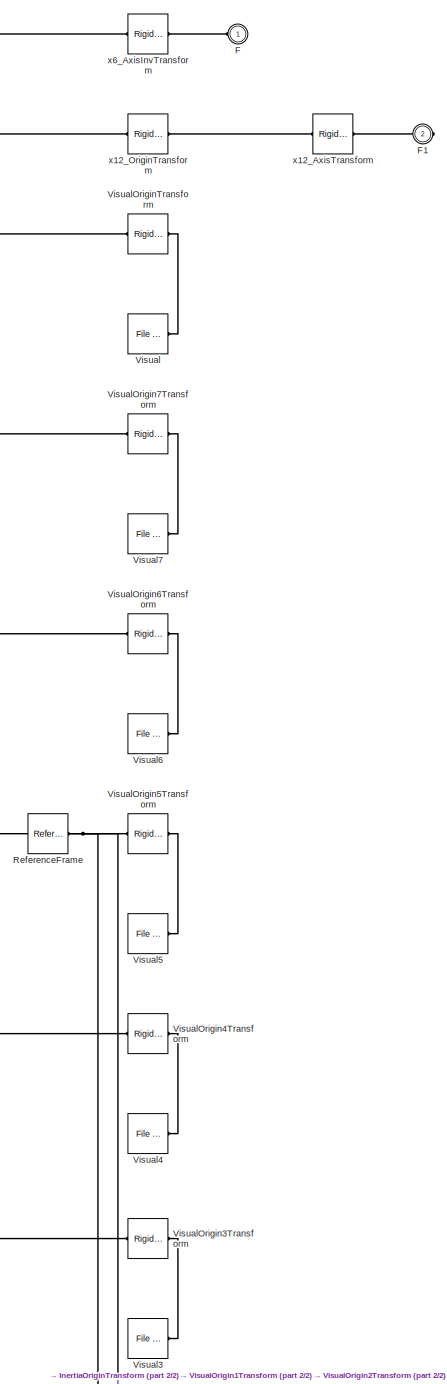
[diagram: Torque_Actuated_Manipulator/Link_6 - part 1/2, full width, middle band]
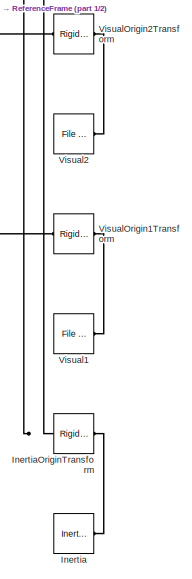
[diagram: Torque_Actuated_Manipulator/Link_6 - part 2/2, bottom center region]
BLOCK [SubSystem] Torque_Actuated_Manipulator/Link_6
  Ports = [0, 0, 0, 0, 0, 1, 1]
BLOCK [PMIOPort] Torque_Actuated_Manipulator/Link_6/F
  Side = Left
BLOCK [PMIOPort] Torque_Actuated_Manipulator/Link_6/F1
  Port = 2
  Side = Right
BLOCK [Reference] Torque_Actuated_Manipulator/Link_6/Inertia  REF=sm_lib/Body Elements/Inertia
  Ports = [0, 0, 0, 0, 0, 0, 1]
  SourceBlock = sm_lib/Body Elements/Inertia
  SourceType = Inertia
BLOCK [Reference] Torque_Actuated_Manipulator/Link_6/InertiaOriginTransform  REF=sm_lib/Frames and
Transforms/Rigid
Transform
  Ports = [0, 0, 0, 0, 0, 1, 1]
  SourceBlock = sm_lib/Frames and\nTransforms/Rigid\nTransform
  SourceType = Rigid\nTransform
BLOCK [Reference] Torque_Actuated_Manipulator/Link_6/ReferenceFrame  REF=sm_lib/Frames and
Transforms/Reference
Frame
  Ports = [0, 0, 0, 0, 0, 0, 1]
  SourceBlock = sm_lib/Frames and\nTransforms/Reference\nFrame
  SourceType = Reference\nFrame
BLOCK [Reference] Torque_Actuated_Manipulator/Link_6/Visual  REF=sm_lib/Body Elements/File Solid
  Ports = [0, 0, 0, 0, 0, 0, 1]
  SourceBlock = sm_lib/Body Elements/File Solid
  SourceType = File Solid
BLOCK [Reference] Torque_Actuated_Manipulator/Link_6/Visual1  REF=sm_lib/Body Elements/File Solid
  Ports = [0, 0, 0, 0, 0, 0, 1]
  SourceBlock = sm_lib/Body Elements/File Solid
  SourceType = File Solid
BLOCK [Reference] Torque_Actuated_Manipulator/Link_6/Visual2  REF=sm_lib/Body Elements/File Solid
  Ports = [0, 0, 0, 0, 0, 0, 1]
  SourceBlock = sm_lib/Body Elements/File Solid
  SourceType = File Solid
BLOCK [Reference] Torque_Actuated_Manipulator/Link_6/Visual3  REF=sm_lib/Body Elements/File Solid
  Ports = [0, 0, 0, 0, 0, 0, 1]
  SourceBlock = sm_lib/Body Elements/File Solid
  SourceType = File Solid
BLOCK [Reference] Torque_Actuated_Manipulator/Link_6/Visual4  REF=sm_lib/Body Elements/File Solid
  Ports = [0, 0, 0, 0, 0, 0, 1]
  SourceBlock = sm_lib/Body Elements/File Solid
  SourceType = File Solid
BLOCK [Reference] Torque_Actuated_Manipulator/Link_6/Visual5  REF=sm_lib/Body Elements/File Solid
  Ports = [0, 0, 0, 0, 0, 0, 1]
  SourceBlock = sm_lib/Body Elements/File Solid
  SourceType = File Solid
BLOCK [Reference] Torque_Actuated_Manipulator/Link_6/Visual6  REF=sm_lib/Body Elements/File Solid
  Ports = [0, 0, 0, 0, 0, 0, 1]
  SourceBlock = sm_lib/Body Elements/File Solid
  SourceType = File Solid
BLOCK [Reference] Torque_Actuated_Manipulator/Link_6/Visual7  REF=sm_lib/Body Elements/File Solid
  Ports = [0, 0, 0, 0, 0, 0, 1]
  SourceBlock = sm_lib/Body Elements/File Solid
  SourceType = File Solid
BLOCK [Reference] Torque_Actuated_Manipulator/Link_6/VisualOrigin1Transform  REF=sm_lib/Frames and
Transforms/Rigid
Transform
  Ports = [0, 0, 0, 0, 0, 1, 1]
  SourceBlock = sm_lib/Frames and\nTransforms/Rigid\nTransform
  SourceType = Rigid\nTransform
BLOCK [Reference] Torque_Actuated_Manipulator/Link_6/VisualOrigin2Transform  REF=sm_lib/Frames and
Transforms/Rigid
Transform
  Ports = [0, 0, 0, 0, 0, 1, 1]
  SourceBlock = sm_lib/Frames and\nTransforms/Rigid\nTransform
  SourceType = Rigid\nTransform
BLOCK [Reference] Torque_Actuated_Manipulator/Link_6/VisualOrigin3Transform  REF=sm_lib/Frames and
Transforms/Rigid
Transform
  Ports = [0, 0, 0, 0, 0, 1, 1]
  SourceBlock = sm_lib/Frames and\nTransforms/Rigid\nTransform
  SourceType = Rigid\nTransform
BLOCK [Reference] Torque_Actuated_Manipulator/Link_6/VisualOrigin4Transform  REF=sm_lib/Frames and
Transforms/Rigid
Transform
  Ports = [0, 0, 0, 0, 0, 1, 1]
  SourceBlock = sm_lib/Frames and\nTransforms/Rigid\nTransform
  SourceType = Rigid\nTransform
BLOCK [Reference] Torque_Actuated_Manipulator/Link_6/VisualOrigin5Transform  REF=sm_lib/Frames and
Transforms/Rigid
Transform
  Ports = [0, 0, 0, 0, 0, 1, 1]
  SourceBlock = sm_lib/Frames and\nTransforms/Rigid\nTransform
  SourceType = Rigid\nTransform
BLOCK [Reference] Torque_Actuated_Manipulator/Link_6/VisualOrigin6Transform  REF=sm_lib/Frames and
Transforms/Rigid
Transform
  Ports = [0, 0, 0, 0, 0, 1, 1]
  SourceBlock = sm_lib/Frames and\nTransforms/Rigid\nTransform
  SourceType = Rigid\nTransform
BLOCK [Reference] Torque_Actuated_Manipulator/Link_6/VisualOrigin7Transform  REF=sm_lib/Frames and
Transforms/Rigid
Transform
  Ports = [0, 0, 0, 0, 0, 1, 1]
  SourceBlock = sm_lib/Frames and\nTransforms/Rigid\nTransform
  SourceType = Rigid\nTransform
BLOCK [Reference] Torque_Actuated_Manipulator/Link_6/VisualOriginTransform  REF=sm_lib/Frames and
Transforms/Rigid
Transform
  Ports = [0, 0, 0, 0, 0, 1, 1]
  SourceBlock = sm_lib/Frames and\nTransforms/Rigid\nTransform
  SourceType = Rigid\nTransform
BLOCK [Reference] Torque_Actuated_Manipulator/Link_6/x12_AxisTransform  REF=sm_lib/Frames and
Transforms/Rigid
Transform
  Ports = [0, 0, 0, 0, 0, 1, 1]
  SourceBlock = sm_lib/Frames and\nTransforms/Rigid\nTransform
  SourceType = Rigid\nTransform
BLOCK [Reference] Torque_Actuated_Manipulator/Link_6/x12_OriginTransform  REF=sm_lib/Frames and
Transforms/Rigid
Transform
  Ports = [0, 0, 0, 0, 0, 1, 1]
  SourceBlock = sm_lib/Frames and\nTransforms/Rigid\nTransform
  SourceType = Rigid\nTransform
BLOCK [Reference] Torque_Actuated_Manipulator/Link_6/x6_AxisInvTransform  REF=sm_lib/Frames and
Transforms/Rigid
Transform
  Ports = [0, 0, 0, 0, 0, 1, 1]
  SourceBlock = sm_lib/Frames and\nTransforms/Rigid\nTransform
  SourceType = Rigid\nTransform
BLOCK [Reference] Torque_Actuated_Manipulator/MechanismConfiguration  REF=sm_lib/Utilities/Mechanism
Configuration
  Ports = [0, 0, 0, 0, 0, 0, 1]
  SourceBlock = sm_lib/Utilities/Mechanism\nConfiguration
  SourceType = Mechanism\nConfiguration
BLOCK [Mux] Torque_Actuated_Manipulator/Mux
  DisplayOption = bar
  Inputs = 6
  Ports = [6, 1]
BLOCK [Reference] Torque_Actuated_Manipulator/PS-Simulink Converter  REF=nesl_utility/PS-Simulink
Converter
  Ports = [0, 1, 0, 0, 0, 1]
  SourceBlock = nesl_utility/PS-Simulink\nConverter
  SourceType = PS-Simulink\nConverter
BLOCK [Reference] Torque_Actuated_Manipulator/PS-Simulink Converter1  REF=nesl_utility/PS-Simulink
Converter
  Ports = [0, 1, 0, 0, 0, 1]
  SourceBlock = nesl_utility/PS-Simulink\nConverter
  SourceType = PS-Simulink\nConverter
BLOCK [Reference] Torque_Actuated_Manipulator/PS-Simulink Converter2  REF=nesl_utility/PS-Simulink
Converter
  Ports = [0, 1, 0, 0, 0, 1]
  SourceBlock = nesl_utility/PS-Simulink\nConverter
  SourceType = PS-Simulink\nConverter
BLOCK [Reference] Torque_Actuated_Manipulator/PS-Simulink Converter3  REF=nesl_utility/PS-Simulink
Converter
  Ports = [0, 1, 0, 0, 0, 1]
  SourceBlock = nesl_utility/PS-Simulink\nConverter
  SourceType = PS-Simulink\nConverter
BLOCK [Reference] Torque_Actuated_Manipulator/PS-Simulink Converter4  REF=nesl_utility/PS-Simulink
Converter
  Ports = [0, 1, 0, 0, 0, 1]
  SourceBlock = nesl_utility/PS-Simulink\nConverter
  SourceType = PS-Simulink\nConverter
BLOCK [Reference] Torque_Actuated_Manipulator/PS-Simulink Converter5  REF=nesl_utility/PS-Simulink
Converter
  Ports = [0, 1, 0, 0, 0, 1]
  SourceBlock = nesl_utility/PS-Simulink\nConverter
  SourceType = PS-Simulink\nConverter
BLOCK [Reference] Torque_Actuated_Manipulator/PS-Simulink Converter6  REF=nesl_utility/PS-Simulink
Converter
  Ports = [0, 1, 0, 0, 0, 1]
  SourceBlock = nesl_utility/PS-Simulink\nConverter
  SourceType = PS-Simulink\nConverter
BLOCK [Reference] Torque_Actuated_Manipulator/Rigid Transform  REF=sm_lib/Frames and
Transforms/Rigid
Transform
  Ports = [0, 0, 0, 0, 0, 1, 1]
  SourceBlock = sm_lib/Frames and\nTransforms/Rigid\nTransform
  SourceType = Rigid\nTransform
BLOCK [Reference] Torque_Actuated_Manipulator/Screw_Joint  REF=sm_lib/Joints/Revolute Joint
  Ports = [0, 0, 0, 0, 0, 2, 2]
  SourceBlock = sm_lib/Joints/Revolute Joint
  SourceType = Revolute Joint
BLOCK [Reference] Torque_Actuated_Manipulator/Simulink-PS Converter1  REF=nesl_utility/Simulink-PS
Converter
  Ports = [1, 0, 0, 0, 0, 0, 1]
  SourceBlock = nesl_utility/Simulink-PS\nConverter
  SourceType = Simulink-PS\nConverter
BLOCK [Reference] Torque_Actuated_Manipulator/Simulink-PS Converter2  REF=nesl_utility/Simulink-PS
Converter
  Ports = [1, 0, 0, 0, 0, 0, 1]
  SourceBlock = nesl_utility/Simulink-PS\nConverter
  SourceType = Simulink-PS\nConverter
BLOCK [Reference] Torque_Actuated_Manipulator/Simulink-PS Converter3  REF=nesl_utility/Simulink-PS
Converter
  Ports = [1, 0, 0, 0, 0, 0, 1]
  SourceBlock = nesl_utility/Simulink-PS\nConverter
  SourceType = Simulink-PS\nConverter
BLOCK [Reference] Torque_Actuated_Manipulator/Simulink-PS Converter4  REF=nesl_utility/Simulink-PS
Converter
  Ports = [1, 0, 0, 0, 0, 0, 1]
  SourceBlock = nesl_utility/Simulink-PS\nConverter
  SourceType = Simulink-PS\nConverter
BLOCK [Reference] Torque_Actuated_Manipulator/Simulink-PS Converter5  REF=nesl_utility/Simulink-PS
Converter
  Ports = [1, 0, 0, 0, 0, 0, 1]
  SourceBlock = nesl_utility/Simulink-PS\nConverter
  SourceType = Simulink-PS\nConverter
BLOCK [Reference] Torque_Actuated_Manipulator/Simulink-PS Converter6  REF=nesl_utility/Simulink-PS
Converter
  Ports = [1, 0, 0, 0, 0, 0, 1]
  SourceBlock = nesl_utility/Simulink-PS\nConverter
  SourceType = Simulink-PS\nConverter
BLOCK [Reference] Torque_Actuated_Manipulator/Simulink-PS Converter7  REF=nesl_utility/Simulink-PS
Converter
  Ports = [1, 0, 0, 0, 0, 0, 1]
  SourceBlock = nesl_utility/Simulink-PS\nConverter
  SourceType = Simulink-PS\nConverter
BLOCK [Reference] Torque_Actuated_Manipulator/Solver Configuration  REF=nesl_utility/Solver
Configuration
  Ports = [0, 0, 0, 0, 0, 0, 1]
  SourceBlock = nesl_utility/Solver\nConfiguration
  SourceType = Solver\nConfiguration
BLOCK [SubSystem] Torque_Actuated_Manipulator/Thread
  Ports = [0, 0, 0, 0, 0, 2, 1]
BLOCK [PMIOPort] Torque_Actuated_Manipulator/Thread/F
  Side = Left
BLOCK [PMIOPort] Torque_Actuated_Manipulator/Thread/F1
  Port = 3
  Side = Right
BLOCK [PMIOPort] Torque_Actuated_Manipulator/Thread/F2
  Port = 2
  Side = Left
BLOCK [Reference] Torque_Actuated_Manipulator/Thread/Inertia  REF=sm_lib/Body Elements/Inertia
  Ports = [0, 0, 0, 0, 0, 0, 1]
  SourceBlock = sm_lib/Body Elements/Inertia
  SourceType = Inertia
BLOCK [Reference] Torque_Actuated_Manipulator/Thread/InertiaOriginTransform  REF=sm_lib/Frames and
Transforms/Rigid
Transform
  Ports = [0, 0, 0, 0, 0, 1, 1]
  SourceBlock = sm_lib/Frames and\nTransforms/Rigid\nTransform
  SourceType = Rigid\nTransform
BLOCK [Reference] Torque_Actuated_Manipulator/Thread/ReferenceFrame  REF=sm_lib/Frames and
Transforms/Reference
Frame
  Ports = [0, 0, 0, 0, 0, 0, 1]
  SourceBlock = sm_lib/Frames and\nTransforms/Reference\nFrame
  SourceType = Reference\nFrame
BLOCK [Reference] Torque_Actuated_Manipulator/Thread/Visual  REF=sm_lib/Body Elements/File Solid
  Ports = [0, 0, 0, 0, 0, 0, 1]
  SourceBlock = sm_lib/Body Elements/File Solid
  SourceType = File Solid
BLOCK [Reference] Torque_Actuated_Manipulator/Thread/VisualOriginTransform  REF=sm_lib/Frames and
Transforms/Rigid
Transform
  Ports = [0, 0, 0, 0, 0, 1, 1]
  SourceBlock = sm_lib/Frames and\nTransforms/Rigid\nTransform
  SourceType = Rigid\nTransform
BLOCK [Reference] Torque_Actuated_Manipulator/Thread/x7_AxisInvTransform  REF=sm_lib/Frames and
Transforms/Rigid
Transform
  Ports = [0, 0, 0, 0, 0, 1, 1]
  SourceBlock = sm_lib/Frames and\nTransforms/Rigid\nTransform
  SourceType = Rigid\nTransform
BLOCK [Reference] Torque_Actuated_Manipulator/Thread/x8_AxisTransform  REF=sm_lib/Frames and
Transforms/Rigid
Transform
  Ports = [0, 0, 0, 0, 0, 1, 1]
  SourceBlock = sm_lib/Frames and\nTransforms/Rigid\nTransform
  SourceType = Rigid\nTransform
BLOCK [Reference] Torque_Actuated_Manipulator/Thread/x8_OriginTransform  REF=sm_lib/Frames and
Transforms/Rigid
Transform
  Ports = [0, 0, 0, 0, 0, 1, 1]
  SourceBlock = sm_lib/Frames and\nTransforms/Rigid\nTransform
  SourceType = Rigid\nTransform
BLOCK [Reference] Torque_Actuated_Manipulator/Thread/x9_AxisTransform  REF=sm_lib/Frames and
Transforms/Rigid
Transform
  Ports = [0, 0, 0, 0, 0, 1, 1]
  SourceBlock = sm_lib/Frames and\nTransforms/Rigid\nTransform
  SourceType = Rigid\nTransform
BLOCK [Reference] Torque_Actuated_Manipulator/Thread/x9_OriginTransform  REF=sm_lib/Frames and
Transforms/Rigid
Transform
  Ports = [0, 0, 0, 0, 0, 1, 1]
  SourceBlock = sm_lib/Frames and\nTransforms/Rigid\nTransform
  SourceType = Rigid\nTransform
BLOCK [Reference] Torque_Actuated_Manipulator/Weld Joint  REF=sm_lib/Joints/Weld Joint
  Ports = [0, 0, 0, 0, 0, 1, 1]
  SourceBlock = sm_lib/Joints/Weld Joint
  SourceType = Weld Joint
BLOCK [Reference] Torque_Actuated_Manipulator/World  REF=sm_lib/Frames and
Transforms/World Frame
  Ports = [0, 0, 0, 0, 0, 0, 1]
  SourceBlock = sm_lib/Frames and\nTransforms/World Frame
  SourceType = World Frame
BLOCK [Outport] Torque_Actuated_Manipulator/arm_q
BLOCK [Inport] Torque_Actuated_Manipulator/grip
  Port = 2
BLOCK [Outport] Torque_Actuated_Manipulator/grip_q
  Port = 2
BLOCK [Inport] Torque_Actuated_Manipulator/tau
BLOCK [TransferFcn] Transfer Fcn1
  Commented = through
  Denominator = [1 4]
BLOCK [TransferFcn] Transfer Fcn2
  Commented = through
  Denominator = [1 5]
ANNOTATION Controller: Input Filter
LINE Constant3:1 -> Inverse Kinematics:2
LINE Constant:1 -> Mux2:1
NET Controller/Config:1 -> Controller/Selector1:1, Controller/Selector:1
LINE Controller/Constant1:1 -> Controller/Switch:3
LINE Controller/Constant:1 -> Controller/Switch:1
NET Controller/Discrete Transfer Fcn1:1 -> Controller/Scope:1, Controller/Sum:1
LINE Controller/Input Filter:1 -> Controller/Input Rate Limiter:1
NET Controller/Input Rate Limiter:1 -> Controller/Inverse Dynamics:1, Controller/PID Compensator2:1
NET Controller/Inverse Dynamics/Config:1 -> Controller/Inverse Dynamics/Discrete Derivative:1, Controller/Inverse Dynamics/Inverse Dynamics:1
LINE Controller/Inverse Dynamics/Constant1:1 -> Controller/Inverse Dynamics/Inverse Dynamics:4
LINE Controller/Inverse Dynamics/Discrete Derivative1:1 -> Controller/Inverse Dynamics/Inverse Dynamics:3
NET Controller/Inverse Dynamics/Discrete Derivative:1 -> Controller/Inverse Dynamics/Discrete Derivative1:1, Controller/Inverse Dynamics/Inverse Dynamics:2
LINE Controller/Inverse Dynamics/Inverse Dynamics:1 -> Controller/Inverse Dynamics/tau:1
LINE Controller/Inverse Dynamics:1 -> Controller/Discrete Transfer Fcn1:1
LINE Controller/Meas:1 -> Controller/PID Compensator2:2
LINE Controller/PID Compensator1/Demux1:1 -> Controller/PID Compensator1/PID1:2
LINE Controller/PID Compensator1/Demux1:2 -> Controller/PID Compensator1/PID2:2
LINE Controller/PID Compensator1/Demux1:3 -> Controller/PID Compensator1/PID3:2
LINE Controller/PID Compensator1/Demux1:4 -> Controller/PID Compensator1/PID4:2
LINE Controller/PID Compensator1/Demux1:5 -> Controller/PID Compensator1/PID5:2
LINE Controller/PID Compensator1/Demux1:6 -> Controller/PID Compensator1/PID6:2
LINE Controller/PID Compensator1/Demux:1 -> Controller/PID Compensator1/PID1:1
LINE Controller/PID Compensator1/Demux:2 -> Controller/PID Compensator1/PID2:1
LINE Controller/PID Compensator1/Demux:3 -> Controller/PID Compensator1/PID3:1
LINE Controller/PID Compensator1/Demux:4 -> Controller/PID Compensator1/PID4:1
LINE Controller/PID Compensator1/Demux:5 -> Controller/PID Compensator1/PID5:1
LINE Controller/PID Compensator1/Demux:6 -> Controller/PID Compensator1/PID6:1
LINE Controller/PID Compensator1/Mux:1 -> Controller/PID Compensator1/sig:1
LINE Controller/PID Compensator1/PID1:1 -> Controller/PID Compensator1/Mux:1
LINE Controller/PID Compensator1/PID2:1 -> Controller/PID Compensator1/Mux:2
LINE Controller/PID Compensator1/PID3:1 -> Controller/PID Compensator1/Mux:3
LINE Controller/PID Compensator1/PID4:1 -> Controller/PID Compensator1/Mux:4
LINE Controller/PID Compensator1/PID5:1 -> Controller/PID Compensator1/Mux:5
LINE Controller/PID Compensator1/PID6:1 -> Controller/PID Compensator1/Mux:6
LINE Controller/PID Compensator1/meas:1 -> Controller/PID Compensator1/Demux1:1
LINE Controller/PID Compensator1/ref:1 -> Controller/PID Compensator1/Demux:1
LINE Controller/PID Compensator2/Demux1:1 -> Controller/PID Compensator2/PID1:2
LINE Controller/PID Compensator2/Demux1:2 -> Controller/PID Compensator2/PID2:2
LINE Controller/PID Compensator2/Demux1:3 -> Controller/PID Compensator2/PID3:2
LINE Controller/PID Compensator2/Demux1:4 -> Controller/PID Compensator2/PID4:2
LINE Controller/PID Compensator2/Demux1:5 -> Controller/PID Compensator2/PID5:2
LINE Controller/PID Compensator2/Demux1:6 -> Controller/PID Compensator2/PID6:2
LINE Controller/PID Compensator2/Demux:1 -> Controller/PID Compensator2/PID1:1
LINE Controller/PID Compensator2/Demux:2 -> Controller/PID Compensator2/PID2:1
LINE Controller/PID Compensator2/Demux:3 -> Controller/PID Compensator2/PID3:1
LINE Controller/PID Compensator2/Demux:4 -> Controller/PID Compensator2/PID4:1
LINE Controller/PID Compensator2/Demux:5 -> Controller/PID Compensator2/PID5:1
LINE Controller/PID Compensator2/Demux:6 -> Controller/PID Compensator2/PID6:1
LINE Controller/PID Compensator2/Mux:1 -> Controller/PID Compensator2/sig:1
LINE Controller/PID Compensator2/PID1:1 -> Controller/PID Compensator2/Mux:1
LINE Controller/PID Compensator2/PID2:1 -> Controller/PID Compensator2/Mux:2
LINE Controller/PID Compensator2/PID3:1 -> Controller/PID Compensator2/Mux:3
LINE Controller/PID Compensator2/PID4:1 -> Controller/PID Compensator2/Mux:4
LINE Controller/PID Compensator2/PID5:1 -> Controller/PID Compensator2/Mux:5
LINE Controller/PID Compensator2/PID6:1 -> Controller/PID Compensator2/Mux:6
LINE Controller/PID Compensator2/meas:1 -> Controller/PID Compensator2/Demux1:1
LINE Controller/PID Compensator2/ref:1 -> Controller/PID Compensator2/Demux:1
LINE Controller/PID Compensator2:1 -> Controller/Sum:2
LINE Controller/PID Compensator3/Demux:1 -> Controller/PID Compensator3/Discrete PID Controller6:1
LINE Controller/PID Compensator3/Demux:2 -> Controller/PID Compensator3/Discrete PID Controller1:1
LINE Controller/PID Compensator3/Demux:3 -> Controller/PID Compensator3/Discrete PID Controller2:1
LINE Controller/PID Compensator3/Demux:4 -> Controller/PID Compensator3/Discrete PID Controller3:1
LINE Controller/PID Compensator3/Demux:5 -> Controller/PID Compensator3/Discrete PID Controller4:1
LINE Controller/PID Compensator3/Demux:6 -> Controller/PID Compensator3/Discrete PID Controller5:1
LINE Controller/PID Compensator3/Discrete PID Controller1:1 -> Controller/PID Compensator3/Mux:2
LINE Controller/PID Compensator3/Discrete PID Controller2:1 -> Controller/PID Compensator3/Mux:3
LINE Controller/PID Compensator3/Discrete PID Controller3:1 -> Controller/PID Compensator3/Mux:4
LINE Controller/PID Compensator3/Discrete PID Controller4:1 -> Controller/PID Compensator3/Mux:5
LINE Controller/PID Compensator3/Discrete PID Controller5:1 -> Controller/PID Compensator3/Mux:6
LINE Controller/PID Compensator3/Discrete PID Controller6:1 -> Controller/PID Compensator3/Mux:1
LINE Controller/PID Compensator3/Mux:1 -> Controller/PID Compensator3/sig:1
LINE Controller/PID Compensator3/Sum:1 -> Controller/PID Compensator3/Demux:1
LINE Controller/PID Compensator3/meas:1 -> Controller/PID Compensator3/Sum:2
LINE Controller/PID Compensator3/ref:1 -> Controller/PID Compensator3/Sum:1
LINE Controller/Saturation/Demux:1 -> Controller/Saturation/Saturation:1
LINE Controller/Saturation/Demux:2 -> Controller/Saturation/Saturation1:1
LINE Controller/Saturation/Demux:3 -> Controller/Saturation/Saturation2:1
LINE Controller/Saturation/Demux:4 -> Controller/Saturation/Saturation3:1
LINE Controller/Saturation/Demux:5 -> Controller/Saturation/Saturation4:1
LINE Controller/Saturation/Demux:6 -> Controller/Saturation/Saturation5:1
LINE Controller/Saturation/Mux:1 -> Controller/Saturation/out:1
LINE Controller/Saturation/Saturation1:1 -> Controller/Saturation/Mux:2
LINE Controller/Saturation/Saturation2:1 -> Controller/Saturation/Mux:3
LINE Controller/Saturation/Saturation3:1 -> Controller/Saturation/Mux:4
LINE Controller/Saturation/Saturation4:1 -> Controller/Saturation/Mux:5
LINE Controller/Saturation/Saturation5:1 -> Controller/Saturation/Mux:6
LINE Controller/Saturation/Saturation:1 -> Controller/Saturation/Mux:1
LINE Controller/Saturation/in:1 -> Controller/Saturation/Demux:1
LINE Controller/Saturation:1 -> Controller/tau:1
LINE Controller/Selector1:1 -> Controller/Switch:2
LINE Controller/Selector:1 -> Controller/Input Filter:1
LINE Controller/Sum:1 -> Controller/Saturation:1
LINE Controller/Switch:1 -> Controller/Transfer Fcn:1
NET Controller/Transfer Fcn:1 -> Controller/Display:1, Controller/Grip_Out:1
LINE Controller:1 -> Torque_Actuated_Manipulator:1
LINE Controller:2 -> Torque_Actuated_Manipulator:2
LINE Forward Kinematics/Config:1 -> Forward Kinematics/Get Transform:1
LINE Forward Kinematics/Coordinate Transformation Conversion:1 -> Forward Kinematics/EulXYZ:1
LINE Forward Kinematics/Coordinate Transformation Conversion:2 -> Forward Kinematics/Gain:1
LINE Forward Kinematics/Gain:1 -> Forward Kinematics/TrVec:1
LINE Forward Kinematics/Get Transform:1 -> Forward Kinematics/Coordinate Transformation Conversion:1
LINE Forward Kinematics:1 -> Mux:1
LINE Forward Kinematics:2 -> Mux:2
LINE Inverse Kinematics/Constant2:1 -> Inverse Kinematics/Inverse Kinematics:2
LINE Inverse Kinematics/Coordinate Transformation Conversion:1 -> Inverse Kinematics/Inverse Kinematics:1
LINE Inverse Kinematics/EulXYZ:1 -> Inverse Kinematics/Coordinate Transformation Conversion:1
LINE Inverse Kinematics/Inverse Kinematics:1 -> Inverse Kinematics/Config:1
LINE Inverse Kinematics/Inverse Kinematics:2 -> Inverse Kinematics/Scope:1
LINE Inverse Kinematics/Pos:1 -> Inverse Kinematics/Transpose:1
LINE Inverse Kinematics/TrVec:1 -> Inverse Kinematics/Coordinate Transformation Conversion:2
LINE Inverse Kinematics/Transpose:1 -> Inverse Kinematics/Inverse Kinematics:3
LINE Inverse Kinematics:1 -> Mux1:1
LINE Memory:1 -> Inverse Kinematics:3
NET Mux1:1 -> Controller:1, Scope2:1
LINE Mux2:1 -> Inverse Kinematics:1
LINE Mux:1 -> Scope:1
LINE Step1:1 -> Transfer Fcn2:1
LINE Step2:1 -> Transfer Fcn1:1
LINE Step:1 -> Mux1:2
LINE Torque_Actuated_Manipulator/Demux:1 -> Torque_Actuated_Manipulator/Simulink-PS Converter5:1
LINE Torque_Actuated_Manipulator/Demux:2 -> Torque_Actuated_Manipulator/Simulink-PS Converter1:1
LINE Torque_Actuated_Manipulator/Demux:3 -> Torque_Actuated_Manipulator/Simulink-PS Converter2:1
LINE Torque_Actuated_Manipulator/Demux:4 -> Torque_Actuated_Manipulator/Simulink-PS Converter3:1
LINE Torque_Actuated_Manipulator/Demux:5 -> Torque_Actuated_Manipulator/Simulink-PS Converter4:1
LINE Torque_Actuated_Manipulator/Demux:6 -> Torque_Actuated_Manipulator/Simulink-PS Converter6:1
LINE Torque_Actuated_Manipulator/Gain:1 -> Torque_Actuated_Manipulator/Simulink-PS Converter7:1
LINE Torque_Actuated_Manipulator/Mux:1 -> Torque_Actuated_Manipulator/arm_q:1
LINE Torque_Actuated_Manipulator/PS-Simulink Converter1:1 -> Torque_Actuated_Manipulator/Mux:2
LINE Torque_Actuated_Manipulator/PS-Simulink Converter2:1 -> Torque_Actuated_Manipulator/Mux:3
LINE Torque_Actuated_Manipulator/PS-Simulink Converter3:1 -> Torque_Actuated_Manipulator/Mux:4
LINE Torque_Actuated_Manipulator/PS-Simulink Converter4:1 -> Torque_Actuated_Manipulator/Mux:5
LINE Torque_Actuated_Manipulator/PS-Simulink Converter5:1 -> Torque_Actuated_Manipulator/Mux:6
LINE Torque_Actuated_Manipulator/PS-Simulink Converter6:1 -> Torque_Actuated_Manipulator/grip_q:1
LINE Torque_Actuated_Manipulator/PS-Simulink Converter:1 -> Torque_Actuated_Manipulator/Mux:1
LINE Torque_Actuated_Manipulator/grip:1 -> Torque_Actuated_Manipulator/Gain:1
LINE Torque_Actuated_Manipulator/tau:1 -> Torque_Actuated_Manipulator/Demux:1
NET Torque_Actuated_Manipulator:1 -> Controller:2, Forward Kinematics:1, Memory:1, Scope2:2
LINE Torque_Actuated_Manipulator:2 -> Scope1:1
LINE Transfer Fcn1:1 -> Mux2:3
LINE Transfer Fcn2:1 -> Mux2:2
PLINE Torque_Actuated_Manipulator/Angle Constraint1:LConn1 -- Torque_Actuated_Manipulator/Gripper_Base:RConn3
PLINE Torque_Actuated_Manipulator/Angle Constraint1:RConn1 -- Torque_Actuated_Manipulator/Gripper_Arm:LConn2
PLINE Torque_Actuated_Manipulator/Angle Constraint:LConn1 -- Torque_Actuated_Manipulator/Gripper_Base:RConn1
PLINE Torque_Actuated_Manipulator/Angle Constraint:RConn1 -- Torque_Actuated_Manipulator/Gripper_Arm_2:LConn2
PLINE Torque_Actuated_Manipulator/Base/F1:RConn1 -- Torque_Actuated_Manipulator/Base/x1_AxisTransform:RConn1
PNET net1: Torque_Actuated_Manipulator/Base/F:RConn1 -- Torque_Actuated_Manipulator/Base/InertiaOriginTransform:LConn1 -- Torque_Actuated_Manipulator/Base/ReferenceFrame:RConn1 -- Torque_Actuated_Manipulator/Base/VisualOrigin1Transform:LConn1 -- Torque_Actuated_Manipulator/Base/VisualOrigin2Transform:LConn1 -- Torque_Actuated_Manipulator/Base/VisualOrigin3Transform:LConn1 -- Torque_Actuated_Manipulator/Base/VisualOriginTransform:LConn1 -- Torque_Actuated_Manipulator/Base/x1_OriginTransform:LConn1
PLINE Torque_Actuated_Manipulator/Base/Inertia:RConn1 -- Torque_Actuated_Manipulator/Base/InertiaOriginTransform:RConn1
PLINE Torque_Actuated_Manipulator/Base/Visual1:RConn1 -- Torque_Actuated_Manipulator/Base/VisualOrigin1Transform:RConn1
PLINE Torque_Actuated_Manipulator/Base/Visual2:RConn1 -- Torque_Actuated_Manipulator/Base/VisualOrigin2Transform:RConn1
PLINE Torque_Actuated_Manipulator/Base/Visual3:RConn1 -- Torque_Actuated_Manipulator/Base/VisualOrigin3Transform:RConn1
PLINE Torque_Actuated_Manipulator/Base/Visual:RConn1 -- Torque_Actuated_Manipulator/Base/VisualOriginTransform:RConn1
PLINE Torque_Actuated_Manipulator/Base/x1_AxisTransform:LConn1 -- Torque_Actuated_Manipulator/Base/x1_OriginTransform:RConn1
PNET net2: Torque_Actuated_Manipulator/Base:LConn1 -- Torque_Actuated_Manipulator/MechanismConfiguration:RConn1 -- Torque_Actuated_Manipulator/Solver Configuration:RConn1 -- Torque_Actuated_Manipulator/World:RConn1
PLINE Torque_Actuated_Manipulator/Base:RConn1 -- Torque_Actuated_Manipulator/Joint_1:LConn1
PNET net3: Torque_Actuated_Manipulator/End_Effector/F:RConn1 -- Torque_Actuated_Manipulator/End_Effector/Inertia:RConn1 -- Torque_Actuated_Manipulator/End_Effector/Reference Frame:RConn1
PLINE Torque_Actuated_Manipulator/End_Effector:RConn1 -- Torque_Actuated_Manipulator/Weld Joint:RConn1
PLINE Torque_Actuated_Manipulator/Gripper_Arm/F1:RConn1 -- Torque_Actuated_Manipulator/Gripper_Arm/Rigid Transform:LConn1
PLINE Torque_Actuated_Manipulator/Gripper_Arm/F:RConn1 -- Torque_Actuated_Manipulator/Gripper_Arm/x8_AxisInvTransform:RConn1
PLINE Torque_Actuated_Manipulator/Gripper_Arm/Inertia:RConn1 -- Torque_Actuated_Manipulator/Gripper_Arm/InertiaOriginTransform:RConn1
PNET net4: Torque_Actuated_Manipulator/Gripper_Arm/InertiaOriginTransform:LConn1 -- Torque_Actuated_Manipulator/Gripper_Arm/ReferenceFrame:RConn1 -- Torque_Actuated_Manipulator/Gripper_Arm/Rigid Transform:RConn1 -- Torque_Actuated_Manipulator/Gripper_Arm/VisualOriginTransform:LConn1 -- Torque_Actuated_Manipulator/Gripper_Arm/x8_AxisInvTransform:LConn1
PLINE Torque_Actuated_Manipulator/Gripper_Arm/Visual:RConn1 -- Torque_Actuated_Manipulator/Gripper_Arm/VisualOriginTransform:RConn1
PLINE Torque_Actuated_Manipulator/Gripper_Arm:LConn1 -- Torque_Actuated_Manipulator/Lead Screw Joint1:RConn1
PLINE Torque_Actuated_Manipulator/Gripper_Arm_2/F1:RConn1 -- Torque_Actuated_Manipulator/Gripper_Arm_2/Rigid Transform:LConn1
PLINE Torque_Actuated_Manipulator/Gripper_Arm_2/F:RConn1 -- Torque_Actuated_Manipulator/Gripper_Arm_2/x9_AxisInvTransform:RConn1
PLINE Torque_Actuated_Manipulator/Gripper_Arm_2/Inertia:RConn1 -- Torque_Actuated_Manipulator/Gripper_Arm_2/InertiaOriginTransform:RConn1
PNET net5: Torque_Actuated_Manipulator/Gripper_Arm_2/InertiaOriginTransform:LConn1 -- Torque_Actuated_Manipulator/Gripper_Arm_2/ReferenceFrame:RConn1 -- Torque_Actuated_Manipulator/Gripper_Arm_2/Rigid Transform:RConn1 -- Torque_Actuated_Manipulator/Gripper_Arm_2/VisualOriginTransform:LConn1 -- Torque_Actuated_Manipulator/Gripper_Arm_2/x9_AxisInvTransform:LConn1
PLINE Torque_Actuated_Manipulator/Gripper_Arm_2/Visual:RConn1 -- Torque_Actuated_Manipulator/Gripper_Arm_2/VisualOriginTransform:RConn1
PLINE Torque_Actuated_Manipulator/Gripper_Arm_2:LConn1 -- Torque_Actuated_Manipulator/Lead Screw Joint2:RConn1
PLINE Torque_Actuated_Manipulator/Gripper_Base/F1:RConn1 -- Torque_Actuated_Manipulator/Gripper_Base/x7_AxisTransform:RConn1
PNET net6: Torque_Actuated_Manipulator/Gripper_Base/F2:RConn1 -- Torque_Actuated_Manipulator/Gripper_Base/F3:RConn1 -- Torque_Actuated_Manipulator/Gripper_Base/Rigid Transform:LConn1
PLINE Torque_Actuated_Manipulator/Gripper_Base/F:RConn1 -- Torque_Actuated_Manipulator/Gripper_Base/x12_AxisInvTransform:RConn1
PLINE Torque_Actuated_Manipulator/Gripper_Base/Inertia:RConn1 -- Torque_Actuated_Manipulator/Gripper_Base/InertiaOriginTransform:RConn1
PNET net7: Torque_Actuated_Manipulator/Gripper_Base/InertiaOriginTransform:LConn1 -- Torque_Actuated_Manipulator/Gripper_Base/ReferenceFrame:RConn1 -- Torque_Actuated_Manipulator/Gripper_Base/Rigid Transform:RConn1 -- Torque_Actuated_Manipulator/Gripper_Base/VisualOriginTransform:LConn1 -- Torque_Actuated_Manipulator/Gripper_Base/x12_AxisInvTransform:LConn1 -- Torque_Actuated_Manipulator/Gripper_Base/x7_OriginTransform:LConn1
PLINE Torque_Actuated_Manipulator/Gripper_Base/Visual:RConn1 -- Torque_Actuated_Manipulator/Gripper_Base/VisualOriginTransform:RConn1
PLINE Torque_Actuated_Manipulator/Gripper_Base/x7_AxisTransform:LConn1 -- Torque_Actuated_Manipulator/Gripper_Base/x7_OriginTransform:RConn1
PNET net8: Torque_Actuated_Manipulator/Gripper_Base:LConn1 -- Torque_Actuated_Manipulator/Link_6:RConn1 -- Torque_Actuated_Manipulator/Rigid Transform:LConn1
PLINE Torque_Actuated_Manipulator/Gripper_Base:RConn2 -- Torque_Actuated_Manipulator/Screw_Joint:LConn1
PLINE Torque_Actuated_Manipulator/Joint_1:LConn2 -- Torque_Actuated_Manipulator/Simulink-PS Converter5:RConn1
PLINE Torque_Actuated_Manipulator/Joint_1:RConn1 -- Torque_Actuated_Manipulator/Link_1:LConn1
PLINE Torque_Actuated_Manipulator/Joint_1:RConn2 -- Torque_Actuated_Manipulator/PS-Simulink Converter:LConn1
PLINE Torque_Actuated_Manipulator/Joint_2:LConn1 -- Torque_Actuated_Manipulator/Link_1:RConn1
PLINE Torque_Actuated_Manipulator/Joint_2:LConn2 -- Torque_Actuated_Manipulator/Simulink-PS Converter1:RConn1
PLINE Torque_Actuated_Manipulator/Joint_2:RConn1 -- Torque_Actuated_Manipulator/Link_2:LConn1
PLINE Torque_Actuated_Manipulator/Joint_2:RConn2 -- Torque_Actuated_Manipulator/PS-Simulink Converter1:LConn1
PLINE Torque_Actuated_Manipulator/Joint_3:LConn1 -- Torque_Actuated_Manipulator/Link_2:RConn1
PLINE Torque_Actuated_Manipulator/Joint_3:LConn2 -- Torque_Actuated_Manipulator/Simulink-PS Converter2:RConn1
PLINE Torque_Actuated_Manipulator/Joint_3:RConn1 -- Torque_Actuated_Manipulator/Link_3:LConn1
PLINE Torque_Actuated_Manipulator/Joint_3:RConn2 -- Torque_Actuated_Manipulator/PS-Simulink Converter2:LConn1
PLINE Torque_Actuated_Manipulator/Joint_4:LConn1 -- Torque_Actuated_Manipulator/Link_3:RConn1
PLINE Torque_Actuated_Manipulator/Joint_4:LConn2 -- Torque_Actuated_Manipulator/Simulink-PS Converter3:RConn1
PLINE Torque_Actuated_Manipulator/Joint_4:RConn1 -- Torque_Actuated_Manipulator/Link_4:LConn1
PLINE Torque_Actuated_Manipulator/Joint_4:RConn2 -- Torque_Actuated_Manipulator/PS-Simulink Converter3:LConn1
PLINE Torque_Actuated_Manipulator/Joint_5:LConn1 -- Torque_Actuated_Manipulator/Link_4:RConn1
PLINE Torque_Actuated_Manipulator/Joint_5:LConn2 -- Torque_Actuated_Manipulator/Simulink-PS Converter4:RConn1
PLINE Torque_Actuated_Manipulator/Joint_5:RConn1 -- Torque_Actuated_Manipulator/Link_5:LConn1
PLINE Torque_Actuated_Manipulator/Joint_5:RConn2 -- Torque_Actuated_Manipulator/PS-Simulink Converter4:LConn1
PLINE Torque_Actuated_Manipulator/Joint_6:LConn1 -- Torque_Actuated_Manipulator/Link_5:RConn1
PLINE Torque_Actuated_Manipulator/Joint_6:LConn2 -- Torque_Actuated_Manipulator/Simulink-PS Converter6:RConn1
PLINE Torque_Actuated_Manipulator/Joint_6:RConn1 -- Torque_Actuated_Manipulator/Link_6:LConn1
PLINE Torque_Actuated_Manipulator/Joint_6:RConn2 -- Torque_Actuated_Manipulator/PS-Simulink Converter5:LConn1
PLINE Torque_Actuated_Manipulator/Lead Screw Joint1:LConn1 -- Torque_Actuated_Manipulator/Thread:RConn1
PLINE Torque_Actuated_Manipulator/Lead Screw Joint2:LConn1 -- Torque_Actuated_Manipulator/Thread:LConn2
PLINE Torque_Actuated_Manipulator/Link_1/F1:RConn1 -- Torque_Actuated_Manipulator/Link_1/x2_AxisTransform:RConn1
PLINE Torque_Actuated_Manipulator/Link_1/F:RConn1 -- Torque_Actuated_Manipulator/Link_1/x1_AxisInvTransform:RConn1
PLINE Torque_Actuated_Manipulator/Link_1/Inertia:RConn1 -- Torque_Actuated_Manipulator/Link_1/InertiaOriginTransform:RConn1
PNET net9: Torque_Actuated_Manipulator/Link_1/InertiaOriginTransform:LConn1 -- Torque_Actuated_Manipulator/Link_1/ReferenceFrame:RConn1 -- Torque_Actuated_Manipulator/Link_1/VisualOrigin1Transform:LConn1 -- Torque_Actuated_Manipulator/Link_1/VisualOriginTransform:LConn1 -- Torque_Actuated_Manipulator/Link_1/x1_AxisInvTransform:LConn1 -- Torque_Actuated_Manipulator/Link_1/x2_OriginTransform:LConn1
PLINE Torque_Actuated_Manipulator/Link_1/Visual1:RConn1 -- Torque_Actuated_Manipulator/Link_1/VisualOrigin1Transform:RConn1
PLINE Torque_Actuated_Manipulator/Link_1/Visual:RConn1 -- Torque_Actuated_Manipulator/Link_1/VisualOriginTransform:RConn1
PLINE Torque_Actuated_Manipulator/Link_1/x2_AxisTransform:LConn1 -- Torque_Actuated_Manipulator/Link_1/x2_OriginTransform:RConn1
PLINE Torque_Actuated_Manipulator/Link_2/F1:RConn1 -- Torque_Actuated_Manipulator/Link_2/x3_AxisTransform:RConn1
PLINE Torque_Actuated_Manipulator/Link_2/F:RConn1 -- Torque_Actuated_Manipulator/Link_2/x2_AxisInvTransform:RConn1
PLINE Torque_Actuated_Manipulator/Link_2/Inertia:RConn1 -- Torque_Actuated_Manipulator/Link_2/InertiaOriginTransform:RConn1
PNET net10: Torque_Actuated_Manipulator/Link_2/InertiaOriginTransform:LConn1 -- Torque_Actuated_Manipulator/Link_2/ReferenceFrame:RConn1 -- Torque_Actuated_Manipulator/Link_2/VisualOrigin1Transform:LConn1 -- Torque_Actuated_Manipulator/Link_2/VisualOrigin2Transform:LConn1 -- Torque_Actuated_Manipulator/Link_2/VisualOriginTransform:LConn1 -- Torque_Actuated_Manipulator/Link_2/x2_AxisInvTransform:LConn1 -- Torque_Actuated_Manipulator/Link_2/x3_OriginTransform:LConn1
PLINE Torque_Actuated_Manipulator/Link_2/Visual1:RConn1 -- Torque_Actuated_Manipulator/Link_2/VisualOrigin1Transform:RConn1
PLINE Torque_Actuated_Manipulator/Link_2/Visual2:RConn1 -- Torque_Actuated_Manipulator/Link_2/VisualOrigin2Transform:RConn1
PLINE Torque_Actuated_Manipulator/Link_2/Visual:RConn1 -- Torque_Actuated_Manipulator/Link_2/VisualOriginTransform:RConn1
PLINE Torque_Actuated_Manipulator/Link_2/x3_AxisTransform:LConn1 -- Torque_Actuated_Manipulator/Link_2/x3_OriginTransform:RConn1
PLINE Torque_Actuated_Manipulator/Link_3/F1:RConn1 -- Torque_Actuated_Manipulator/Link_3/x4_AxisTransform:RConn1
PLINE Torque_Actuated_Manipulator/Link_3/F:RConn1 -- Torque_Actuated_Manipulator/Link_3/x3_AxisInvTransform:RConn1
PLINE Torque_Actuated_Manipulator/Link_3/Inertia:RConn1 -- Torque_Actuated_Manipulator/Link_3/InertiaOriginTransform:RConn1
PNET net11: Torque_Actuated_Manipulator/Link_3/InertiaOriginTransform:LConn1 -- Torque_Actuated_Manipulator/Link_3/ReferenceFrame:RConn1 -- Torque_Actuated_Manipulator/Link_3/VisualOrigin1Transform:LConn1 -- Torque_Actuated_Manipulator/Link_3/VisualOriginTransform:LConn1 -- Torque_Actuated_Manipulator/Link_3/x3_AxisInvTransform:LConn1 -- Torque_Actuated_Manipulator/Link_3/x4_OriginTransform:LConn1
PLINE Torque_Actuated_Manipulator/Link_3/Visual1:RConn1 -- Torque_Actuated_Manipulator/Link_3/VisualOrigin1Transform:RConn1
PLINE Torque_Actuated_Manipulator/Link_3/Visual:RConn1 -- Torque_Actuated_Manipulator/Link_3/VisualOriginTransform:RConn1
PLINE Torque_Actuated_Manipulator/Link_3/x4_AxisTransform:LConn1 -- Torque_Actuated_Manipulator/Link_3/x4_OriginTransform:RConn1
PLINE Torque_Actuated_Manipulator/Link_4/F1:RConn1 -- Torque_Actuated_Manipulator/Link_4/x5_AxisTransform:RConn1
PLINE Torque_Actuated_Manipulator/Link_4/F:RConn1 -- Torque_Actuated_Manipulator/Link_4/x4_AxisInvTransform:RConn1
PLINE Torque_Actuated_Manipulator/Link_4/Inertia:RConn1 -- Torque_Actuated_Manipulator/Link_4/InertiaOriginTransform:RConn1
PNET net12: Torque_Actuated_Manipulator/Link_4/InertiaOriginTransform:LConn1 -- Torque_Actuated_Manipulator/Link_4/ReferenceFrame:RConn1 -- Torque_Actuated_Manipulator/Link_4/VisualOrigin1Transform:LConn1 -- Torque_Actuated_Manipulator/Link_4/VisualOrigin2Transform:LConn1 -- Torque_Actuated_Manipulator/Link_4/VisualOriginTransform:LConn1 -- Torque_Actuated_Manipulator/Link_4/x4_AxisInvTransform:LConn1 -- Torque_Actuated_Manipulator/Link_4/x5_OriginTransform:LConn1
PLINE Torque_Actuated_Manipulator/Link_4/Visual1:RConn1 -- Torque_Actuated_Manipulator/Link_4/VisualOrigin1Transform:RConn1
PLINE Torque_Actuated_Manipulator/Link_4/Visual2:RConn1 -- Torque_Actuated_Manipulator/Link_4/VisualOrigin2Transform:RConn1
PLINE Torque_Actuated_Manipulator/Link_4/Visual:RConn1 -- Torque_Actuated_Manipulator/Link_4/VisualOriginTransform:RConn1
PLINE Torque_Actuated_Manipulator/Link_4/x5_AxisTransform:LConn1 -- Torque_Actuated_Manipulator/Link_4/x5_OriginTransform:RConn1
PLINE Torque_Actuated_Manipulator/Link_5/F1:RConn1 -- Torque_Actuated_Manipulator/Link_5/x6_AxisTransform:RConn1
PLINE Torque_Actuated_Manipulator/Link_5/F:RConn1 -- Torque_Actuated_Manipulator/Link_5/x5_AxisInvTransform:RConn1
PLINE Torque_Actuated_Manipulator/Link_5/Inertia:RConn1 -- Torque_Actuated_Manipulator/Link_5/InertiaOriginTransform:RConn1
PNET net13: Torque_Actuated_Manipulator/Link_5/InertiaOriginTransform:LConn1 -- Torque_Actuated_Manipulator/Link_5/ReferenceFrame:RConn1 -- Torque_Actuated_Manipulator/Link_5/VisualOrigin1Transform:LConn1 -- Torque_Actuated_Manipulator/Link_5/VisualOriginTransform:LConn1 -- Torque_Actuated_Manipulator/Link_5/x5_AxisInvTransform:LConn1 -- Torque_Actuated_Manipulator/Link_5/x6_OriginTransform:LConn1
PLINE Torque_Actuated_Manipulator/Link_5/Visual1:RConn1 -- Torque_Actuated_Manipulator/Link_5/VisualOrigin1Transform:RConn1
PLINE Torque_Actuated_Manipulator/Link_5/Visual:RConn1 -- Torque_Actuated_Manipulator/Link_5/VisualOriginTransform:RConn1
PLINE Torque_Actuated_Manipulator/Link_5/x6_AxisTransform:LConn1 -- Torque_Actuated_Manipulator/Link_5/x6_OriginTransform:RConn1
PLINE Torque_Actuated_Manipulator/Link_6/F1:RConn1 -- Torque_Actuated_Manipulator/Link_6/x12_AxisTransform:RConn1
PLINE Torque_Actuated_Manipulator/Link_6/F:RConn1 -- Torque_Actuated_Manipulator/Link_6/x6_AxisInvTransform:RConn1
PLINE Torque_Actuated_Manipulator/Link_6/Inertia:RConn1 -- Torque_Actuated_Manipulator/Link_6/InertiaOriginTransform:RConn1
PNET net14: Torque_Actuated_Manipulator/Link_6/InertiaOriginTransform:LConn1 -- Torque_Actuated_Manipulator/Link_6/ReferenceFrame:RConn1 -- Torque_Actuated_Manipulator/Link_6/VisualOrigin1Transform:LConn1 -- Torque_Actuated_Manipulator/Link_6/VisualOrigin2Transform:LConn1 -- Torque_Actuated_Manipulator/Link_6/VisualOrigin3Transform:LConn1 -- Torque_Actuated_Manipulator/Link_6/VisualOrigin4Transform:LConn1 -- Torque_Actuated_Manipulator/Link_6/VisualOrigin5Transform:LConn1 -- Torque_Actuated_Manipulator/Link_6/VisualOrigin6Transform:LConn1 -- Torque_Actuated_Manipulator/Link_6/VisualOrigin7Transform:LConn1 -- Torque_Actuated_Manipulator/Link_6/VisualOriginTransform:LConn1 -- Torque_Actuated_Manipulator/Link_6/x12_OriginTransform:LConn1 -- Torque_Actuated_Manipulator/Link_6/x6_AxisInvTransform:LConn1
PLINE Torque_Actuated_Manipulator/Link_6/Visual1:RConn1 -- Torque_Actuated_Manipulator/Link_6/VisualOrigin1Transform:RConn1
PLINE Torque_Actuated_Manipulator/Link_6/Visual2:RConn1 -- Torque_Actuated_Manipulator/Link_6/VisualOrigin2Transform:RConn1
PLINE Torque_Actuated_Manipulator/Link_6/Visual3:RConn1 -- Torque_Actuated_Manipulator/Link_6/VisualOrigin3Transform:RConn1
PLINE Torque_Actuated_Manipulator/Link_6/Visual4:RConn1 -- Torque_Actuated_Manipulator/Link_6/VisualOrigin4Transform:RConn1
PLINE Torque_Actuated_Manipulator/Link_6/Visual5:RConn1 -- Torque_Actuated_Manipulator/Link_6/VisualOrigin5Transform:RConn1
PLINE Torque_Actuated_Manipulator/Link_6/Visual6:RConn1 -- Torque_Actuated_Manipulator/Link_6/VisualOrigin6Transform:RConn1
PLINE Torque_Actuated_Manipulator/Link_6/Visual7:RConn1 -- Torque_Actuated_Manipulator/Link_6/VisualOrigin7Transform:RConn1
PLINE Torque_Actuated_Manipulator/Link_6/Visual:RConn1 -- Torque_Actuated_Manipulator/Link_6/VisualOriginTransform:RConn1
PLINE Torque_Actuated_Manipulator/Link_6/x12_AxisTransform:LConn1 -- Torque_Actuated_Manipulator/Link_6/x12_OriginTransform:RConn1
PLINE Torque_Actuated_Manipulator/PS-Simulink Converter6:LConn1 -- Torque_Actuated_Manipulator/Screw_Joint:RConn2
PLINE Torque_Actuated_Manipulator/Rigid Transform:RConn1 -- Torque_Actuated_Manipulator/Weld Joint:LConn1
PLINE Torque_Actuated_Manipulator/Screw_Joint:LConn2 -- Torque_Actuated_Manipulator/Simulink-PS Converter7:RConn1
PLINE Torque_Actuated_Manipulator/Screw_Joint:RConn1 -- Torque_Actuated_Manipulator/Thread:LConn1
PLINE Torque_Actuated_Manipulator/Thread/F1:RConn1 -- Torque_Actuated_Manipulator/Thread/x8_AxisTransform:RConn1
PLINE Torque_Actuated_Manipulator/Thread/F2:RConn1 -- Torque_Actuated_Manipulator/Thread/x9_AxisTransform:RConn1
PLINE Torque_Actuated_Manipulator/Thread/F:RConn1 -- Torque_Actuated_Manipulator/Thread/x7_AxisInvTransform:RConn1
PLINE Torque_Actuated_Manipulator/Thread/Inertia:RConn1 -- Torque_Actuated_Manipulator/Thread/InertiaOriginTransform:RConn1
PNET net15: Torque_Actuated_Manipulator/Thread/InertiaOriginTransform:LConn1 -- Torque_Actuated_Manipulator/Thread/ReferenceFrame:RConn1 -- Torque_Actuated_Manipulator/Thread/VisualOriginTransform:LConn1 -- Torque_Actuated_Manipulator/Thread/x7_AxisInvTransform:LConn1 -- Torque_Actuated_Manipulator/Thread/x8_OriginTransform:LConn1 -- Torque_Actuated_Manipulator/Thread/x9_OriginTransform:LConn1
PLINE Torque_Actuated_Manipulator/Thread/Visual:RConn1 -- Torque_Actuated_Manipulator/Thread/VisualOriginTransform:RConn1
PLINE Torque_Actuated_Manipulator/Thread/x8_AxisTransform:LConn1 -- Torque_Actuated_Manipulator/Thread/x8_OriginTransform:RConn1
PLINE Torque_Actuated_Manipulator/Thread/x9_AxisTransform:LConn1 -- Torque_Actuated_Manipulator/Thread/x9_OriginTransform:RConn1
note: NET lines group one-source signal fan-out (src -> all destinations, sorted); 1:1 wires keep LINE; PNET lines group multi-terminal physical nets as a canonical sorted terminal list (undirected conserving connections); 2-terminal nets keep the pairwise PLINE form
